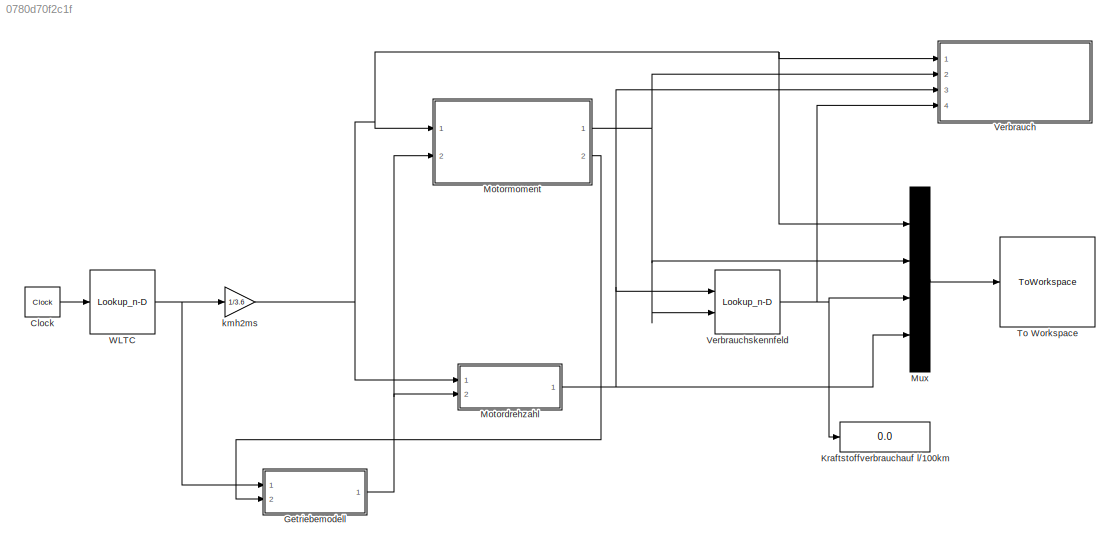
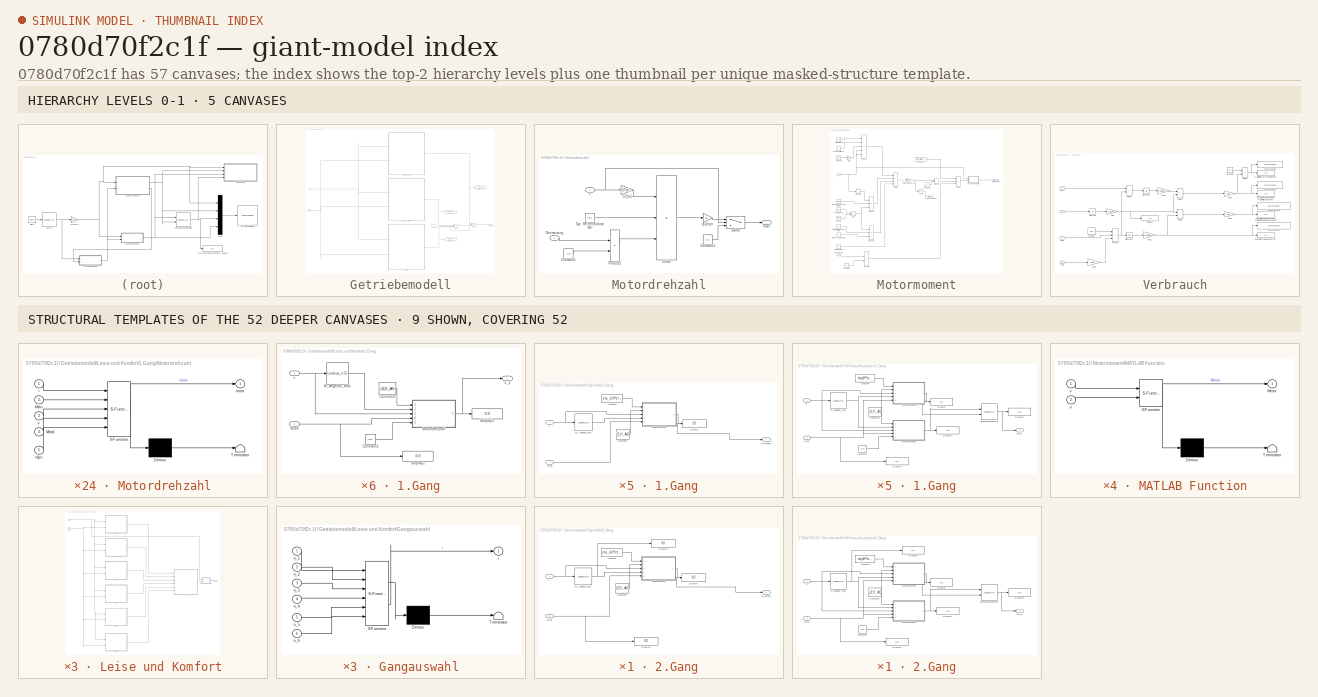
[diagram: thumbnail index - top-2 hierarchy levels (5 canvases) + 9 structural-template representatives of the remaining 52 canvases]
MODEL slx_0780d70f2c1f
KIND model
CONFIG AbsTol = auto
CONFIG EnableMultiTasking = off
CONFIG FixedStep = 1
CONFIG MaxStep = auto
CONFIG MinStep = auto
CONFIG RelTol = 1e-3
CONFIG SampleTimeConstraint = Unconstrained
CONFIG SolverName = FixedStepAuto
CONFIG StartTime = 0.0
CONFIG StopTime = 37
WORKSPACE source: mxarray member
WORKSPACE F_mod = 1
WORKSPACE b_kw = 8.5
BLOCK [Clock] Clock
  Decimation = 1
  DisplayTime = on
BLOCK [SubSystem] Getriebemodell
  Ports = [2, 1]
  RequestExecContextInheritance = off
BLOCK [Constant] Getriebemodell/Constant
  Value = 2
BLOCK [SubSystem] Getriebemodell/Leise und Komfort
  Ports = [2, 1]
  RequestExecContextInheritance = off
BLOCK [SubSystem] Getriebemodell/Leise und Komfort/1.Gang
  Ports = [2, 1]
  RequestExecContextInheritance = off
BLOCK [Constant] Getriebemodell/Leise und Komfort/1.Gang/Constant1
  Value = rdyn
BLOCK [Constant] Getriebemodell/Leise und Komfort/1.Gang/Constant2
  Value = i(1)*i_AG
BLOCK [Display] Getriebemodell/Leise und Komfort/1.Gang/Display1
  Decimation = 1
  Ports = [1]
BLOCK [Display] Getriebemodell/Leise und Komfort/1.Gang/Display2
  Decimation = 1
  Ports = [1]
BLOCK [Lookup_n-D] Getriebemodell/Leise und Komfort/1.Gang/M_Angebot_Max
  BreakpointsForDimension1 = v1_1
  InputPortMap = u0
  InternalRulePriority = Speed
  NumberOfTableDimensions = 1
  Ports = [1, 1]
  RndMeth = Simplest
  Table = M_1
BLOCK [SubSystem] Getriebemodell/Leise und Komfort/1.Gang/Motordrehzahl
  ErrorFcn = Stateflow.Translate.translate
  PermitHierarchicalResolution = ExplicitOnly
  Ports = [5, 1]
  RequestExecContextInheritance = off
  SFBlockType = MATLAB Function
  TreatAsAtomicUnit = on
BLOCK [Demux] Getriebemodell/Leise und Komfort/1.Gang/Motordrehzahl/ Demux 
  Outputs = 1
  Ports = [1, 1]
BLOCK [S-Function] Getriebemodell/Leise und Komfort/1.Gang/Motordrehzahl/ SFunction 
  EnableBusSupport = on
  FunctionName = sf_sfun
  PortCounts = [5 2]
  Ports = [5, 2]
  SFcnIsStateOwnerBlock = off
  SFunctionDeploymentMode = off
  Tag = Stateflow S-Function 30
BLOCK [Terminator] Getriebemodell/Leise und Komfort/1.Gang/Motordrehzahl/ Terminator 
BLOCK [Inport] Getriebemodell/Leise und Komfort/1.Gang/Motordrehzahl/Man
  Port = 2
BLOCK [Inport] Getriebemodell/Leise und Komfort/1.Gang/Motordrehzahl/Mrad
  Port = 4
BLOCK [Inport] Getriebemodell/Leise und Komfort/1.Gang/Motordrehzahl/i
BLOCK [Outport] Getriebemodell/Leise und Komfort/1.Gang/Motordrehzahl/nmot
BLOCK [Inport] Getriebemodell/Leise und Komfort/1.Gang/Motordrehzahl/rdyn
  Port = 5
BLOCK [Inport] Getriebemodell/Leise und Komfort/1.Gang/Motordrehzahl/v
  Port = 3
BLOCK [Inport] Getriebemodell/Leise und Komfort/1.Gang/Mrad
  Port = 2
BLOCK [Outport] Getriebemodell/Leise und Komfort/1.Gang/n_1
BLOCK [Inport] Getriebemodell/Leise und Komfort/1.Gang/v
BLOCK [SubSystem] Getriebemodell/Leise und Komfort/2.Gang
  Ports = [2, 1]
  RequestExecContextInheritance = off
BLOCK [Constant] Getriebemodell/Leise und Komfort/2.Gang/Constant1
  Value = rdyn
BLOCK [Constant] Getriebemodell/Leise und Komfort/2.Gang/Constant2
  Value = i(2)*i_AG
BLOCK [Display] Getriebemodell/Leise und Komfort/2.Gang/Display1
  Decimation = 1
  Ports = [1]
BLOCK [Display] Getriebemodell/Leise und Komfort/2.Gang/Display2
  Decimation = 1
  Ports = [1]
BLOCK [Lookup_n-D] Getriebemodell/Leise und Komfort/2.Gang/M_Angebot_Max
  BreakpointsForDimension1 = v1_2
  InputPortMap = u0
  InternalRulePriority = Speed
  NumberOfTableDimensions = 1
  Ports = [1, 1]
  RndMeth = Simplest
  Table = M_2
BLOCK [SubSystem] Getriebemodell/Leise und Komfort/2.Gang/Motordrehzahl
  ErrorFcn = Stateflow.Translate.translate
  PermitHierarchicalResolution = ExplicitOnly
  Ports = [5, 1]
  RequestExecContextInheritance = off
  SFBlockType = MATLAB Function
  TreatAsAtomicUnit = on
BLOCK [Demux] Getriebemodell/Leise und Komfort/2.Gang/Motordrehzahl/ Demux 
  Outputs = 1
  Ports = [1, 1]
BLOCK [S-Function] Getriebemodell/Leise und Komfort/2.Gang/Motordrehzahl/ SFunction 
  EnableBusSupport = on
  FunctionName = sf_sfun
  PortCounts = [5 2]
  Ports = [5, 2]
  SFcnIsStateOwnerBlock = off
  SFunctionDeploymentMode = off
  Tag = Stateflow S-Function 32
BLOCK [Terminator] Getriebemodell/Leise und Komfort/2.Gang/Motordrehzahl/ Terminator 
BLOCK [Inport] Getriebemodell/Leise und Komfort/2.Gang/Motordrehzahl/Man
  Port = 2
BLOCK [Inport] Getriebemodell/Leise und Komfort/2.Gang/Motordrehzahl/Mrad
  Port = 4
BLOCK [Inport] Getriebemodell/Leise und Komfort/2.Gang/Motordrehzahl/i
BLOCK [Outport] Getriebemodell/Leise und Komfort/2.Gang/Motordrehzahl/nmot
BLOCK [Inport] Getriebemodell/Leise und Komfort/2.Gang/Motordrehzahl/rdyn
  Port = 5
BLOCK [Inport] Getriebemodell/Leise und Komfort/2.Gang/Motordrehzahl/v
  Port = 3
BLOCK [Inport] Getriebemodell/Leise und Komfort/2.Gang/Mrad
  Port = 2
BLOCK [Outport] Getriebemodell/Leise und Komfort/2.Gang/n_2
BLOCK [Inport] Getriebemodell/Leise und Komfort/2.Gang/v
BLOCK [SubSystem] Getriebemodell/Leise und Komfort/3.Gang
  Ports = [2, 1]
  RequestExecContextInheritance = off
BLOCK [Constant] Getriebemodell/Leise und Komfort/3.Gang/Constant1
  Value = rdyn
BLOCK [Constant] Getriebemodell/Leise und Komfort/3.Gang/Constant2
  Value = i(3)*i_AG
BLOCK [Display] Getriebemodell/Leise und Komfort/3.Gang/Display1
  Decimation = 1
  Ports = [1]
BLOCK [Display] Getriebemodell/Leise und Komfort/3.Gang/Display2
  Decimation = 1
  Ports = [1]
BLOCK [Lookup_n-D] Getriebemodell/Leise und Komfort/3.Gang/M_Angebot_Max
  BreakpointsForDimension1 = v1_3
  InputPortMap = u0
  InternalRulePriority = Speed
  NumberOfTableDimensions = 1
  Ports = [1, 1]
  RndMeth = Simplest
  Table = M_3
BLOCK [SubSystem] Getriebemodell/Leise und Komfort/3.Gang/Motordrehzahl
  ErrorFcn = Stateflow.Translate.translate
  PermitHierarchicalResolution = ExplicitOnly
  Ports = [5, 1]
  RequestExecContextInheritance = off
  SFBlockType = MATLAB Function
  TreatAsAtomicUnit = on
BLOCK [Demux] Getriebemodell/Leise und Komfort/3.Gang/Motordrehzahl/ Demux 
  Outputs = 1
  Ports = [1, 1]
BLOCK [S-Function] Getriebemodell/Leise und Komfort/3.Gang/Motordrehzahl/ SFunction 
  EnableBusSupport = on
  FunctionName = sf_sfun
  PortCounts = [5 2]
  Ports = [5, 2]
  SFcnIsStateOwnerBlock = off
  SFunctionDeploymentMode = off
  Tag = Stateflow S-Function 34
BLOCK [Terminator] Getriebemodell/Leise und Komfort/3.Gang/Motordrehzahl/ Terminator 
BLOCK [Inport] Getriebemodell/Leise und Komfort/3.Gang/Motordrehzahl/Man
  Port = 2
BLOCK [Inport] Getriebemodell/Leise und Komfort/3.Gang/Motordrehzahl/Mrad
  Port = 4
BLOCK [Inport] Getriebemodell/Leise und Komfort/3.Gang/Motordrehzahl/i
BLOCK [Outport] Getriebemodell/Leise und Komfort/3.Gang/Motordrehzahl/nmot
BLOCK [Inport] Getriebemodell/Leise und Komfort/3.Gang/Motordrehzahl/rdyn
  Port = 5
BLOCK [Inport] Getriebemodell/Leise und Komfort/3.Gang/Motordrehzahl/v
  Port = 3
BLOCK [Inport] Getriebemodell/Leise und Komfort/3.Gang/Mrad
  Port = 2
BLOCK [Outport] Getriebemodell/Leise und Komfort/3.Gang/n_3
BLOCK [Inport] Getriebemodell/Leise und Komfort/3.Gang/v
BLOCK [SubSystem] Getriebemodell/Leise und Komfort/4.Gang
  Ports = [2, 1]
  RequestExecContextInheritance = off
BLOCK [Constant] Getriebemodell/Leise und Komfort/4.Gang/Constant1
  Value = rdyn
BLOCK [Constant] Getriebemodell/Leise und Komfort/4.Gang/Constant2
  Value = i(4)*i_AG
BLOCK [Display] Getriebemodell/Leise und Komfort/4.Gang/Display1
  Decimation = 1
  Ports = [1]
BLOCK [Display] Getriebemodell/Leise und Komfort/4.Gang/Display2
  Decimation = 1
  Ports = [1]
BLOCK [Lookup_n-D] Getriebemodell/Leise und Komfort/4.Gang/M_Angebot_Max
  BreakpointsForDimension1 = v1_4
  InputPortMap = u0
  InternalRulePriority = Speed
  NumberOfTableDimensions = 1
  Ports = [1, 1]
  RndMeth = Simplest
  Table = M_4
BLOCK [SubSystem] Getriebemodell/Leise und Komfort/4.Gang/Motordrehzahl
  ErrorFcn = Stateflow.Translate.translate
  PermitHierarchicalResolution = ExplicitOnly
  Ports = [5, 1]
  RequestExecContextInheritance = off
  SFBlockType = MATLAB Function
  TreatAsAtomicUnit = on
BLOCK [Demux] Getriebemodell/Leise und Komfort/4.Gang/Motordrehzahl/ Demux 
  Outputs = 1
  Ports = [1, 1]
BLOCK [S-Function] Getriebemodell/Leise und Komfort/4.Gang/Motordrehzahl/ SFunction 
  EnableBusSupport = on
  FunctionName = sf_sfun
  PortCounts = [5 2]
  Ports = [5, 2]
  SFcnIsStateOwnerBlock = off
  SFunctionDeploymentMode = off
  Tag = Stateflow S-Function 36
BLOCK [Terminator] Getriebemodell/Leise und Komfort/4.Gang/Motordrehzahl/ Terminator 
BLOCK [Inport] Getriebemodell/Leise und Komfort/4.Gang/Motordrehzahl/Man
  Port = 2
BLOCK [Inport] Getriebemodell/Leise und Komfort/4.Gang/Motordrehzahl/Mrad
  Port = 4
BLOCK [Inport] Getriebemodell/Leise und Komfort/4.Gang/Motordrehzahl/i
BLOCK [Outport] Getriebemodell/Leise und Komfort/4.Gang/Motordrehzahl/nmot
BLOCK [Inport] Getriebemodell/Leise und Komfort/4.Gang/Motordrehzahl/rdyn
  Port = 5
BLOCK [Inport] Getriebemodell/Leise und Komfort/4.Gang/Motordrehzahl/v
  Port = 3
BLOCK [Inport] Getriebemodell/Leise und Komfort/4.Gang/Mrad
  Port = 2
BLOCK [Outport] Getriebemodell/Leise und Komfort/4.Gang/n_4
BLOCK [Inport] Getriebemodell/Leise und Komfort/4.Gang/v
BLOCK [SubSystem] Getriebemodell/Leise und Komfort/5.Gang
  Ports = [2, 1]
  RequestExecContextInheritance = off
BLOCK [Constant] Getriebemodell/Leise und Komfort/5.Gang/Constant1
  Value = rdyn
BLOCK [Constant] Getriebemodell/Leise und Komfort/5.Gang/Constant2
  Value = i(5)*i_AG
BLOCK [Display] Getriebemodell/Leise und Komfort/5.Gang/Display1
  Decimation = 1
  Ports = [1]
BLOCK [Display] Getriebemodell/Leise und Komfort/5.Gang/Display2
  Decimation = 1
  Ports = [1]
BLOCK [Lookup_n-D] Getriebemodell/Leise und Komfort/5.Gang/M_Angebot_Max
  BreakpointsForDimension1 = v1_5
  InputPortMap = u0
  InternalRulePriority = Speed
  NumberOfTableDimensions = 1
  Ports = [1, 1]
  RndMeth = Simplest
  Table = M_5
BLOCK [SubSystem] Getriebemodell/Leise und Komfort/5.Gang/Motordrehzahl
  ErrorFcn = Stateflow.Translate.translate
  PermitHierarchicalResolution = ExplicitOnly
  Ports = [5, 1]
  RequestExecContextInheritance = off
  SFBlockType = MATLAB Function
  TreatAsAtomicUnit = on
BLOCK [Demux] Getriebemodell/Leise und Komfort/5.Gang/Motordrehzahl/ Demux 
  Outputs = 1
  Ports = [1, 1]
BLOCK [S-Function] Getriebemodell/Leise und Komfort/5.Gang/Motordrehzahl/ SFunction 
  EnableBusSupport = on
  FunctionName = sf_sfun
  PortCounts = [5 2]
  Ports = [5, 2]
  SFcnIsStateOwnerBlock = off
  SFunctionDeploymentMode = off
  Tag = Stateflow S-Function 38
BLOCK [Terminator] Getriebemodell/Leise und Komfort/5.Gang/Motordrehzahl/ Terminator 
BLOCK [Inport] Getriebemodell/Leise und Komfort/5.Gang/Motordrehzahl/Man
  Port = 2
BLOCK [Inport] Getriebemodell/Leise und Komfort/5.Gang/Motordrehzahl/Mrad
  Port = 4
BLOCK [Inport] Getriebemodell/Leise und Komfort/5.Gang/Motordrehzahl/i
BLOCK [Outport] Getriebemodell/Leise und Komfort/5.Gang/Motordrehzahl/nmot
BLOCK [Inport] Getriebemodell/Leise und Komfort/5.Gang/Motordrehzahl/rdyn
  Port = 5
BLOCK [Inport] Getriebemodell/Leise und Komfort/5.Gang/Motordrehzahl/v
  Port = 3
BLOCK [Inport] Getriebemodell/Leise und Komfort/5.Gang/Mrad
  Port = 2
BLOCK [Outport] Getriebemodell/Leise und Komfort/5.Gang/n_5
BLOCK [Inport] Getriebemodell/Leise und Komfort/5.Gang/v
BLOCK [SubSystem] Getriebemodell/Leise und Komfort/6.Gang
  Ports = [2, 1]
  RequestExecContextInheritance = off
BLOCK [Constant] Getriebemodell/Leise und Komfort/6.Gang/Constant1
  Value = rdyn
BLOCK [Constant] Getriebemodell/Leise und Komfort/6.Gang/Constant2
  Value = i(6)*i_AG
BLOCK [Display] Getriebemodell/Leise und Komfort/6.Gang/Display1
  Decimation = 1
  Ports = [1]
BLOCK [Display] Getriebemodell/Leise und Komfort/6.Gang/Display2
  Decimation = 1
  Ports = [1]
BLOCK [Lookup_n-D] Getriebemodell/Leise und Komfort/6.Gang/M_Angebot_Max
  BreakpointsForDimension1 = v1_6
  InputPortMap = u0
  InternalRulePriority = Speed
  NumberOfTableDimensions = 1
  Ports = [1, 1]
  RndMeth = Simplest
  Table = M_6
BLOCK [SubSystem] Getriebemodell/Leise und Komfort/6.Gang/Motordrehzahl
  ErrorFcn = Stateflow.Translate.translate
  PermitHierarchicalResolution = ExplicitOnly
  Ports = [5, 1]
  RequestExecContextInheritance = off
  SFBlockType = MATLAB Function
  TreatAsAtomicUnit = on
BLOCK [Demux] Getriebemodell/Leise und Komfort/6.Gang/Motordrehzahl/ Demux 
  Outputs = 1
  Ports = [1, 1]
BLOCK [S-Function] Getriebemodell/Leise und Komfort/6.Gang/Motordrehzahl/ SFunction 
  EnableBusSupport = on
  FunctionName = sf_sfun
  PortCounts = [5 2]
  Ports = [5, 2]
  SFcnIsStateOwnerBlock = off
  SFunctionDeploymentMode = off
  Tag = Stateflow S-Function 40
BLOCK [Terminator] Getriebemodell/Leise und Komfort/6.Gang/Motordrehzahl/ Terminator 
BLOCK [Inport] Getriebemodell/Leise und Komfort/6.Gang/Motordrehzahl/Man
  Port = 2
BLOCK [Inport] Getriebemodell/Leise und Komfort/6.Gang/Motordrehzahl/Mrad
  Port = 4
BLOCK [Inport] Getriebemodell/Leise und Komfort/6.Gang/Motordrehzahl/i
BLOCK [Outport] Getriebemodell/Leise und Komfort/6.Gang/Motordrehzahl/nmot
BLOCK [Inport] Getriebemodell/Leise und Komfort/6.Gang/Motordrehzahl/rdyn
  Port = 5
BLOCK [Inport] Getriebemodell/Leise und Komfort/6.Gang/Motordrehzahl/v
  Port = 3
BLOCK [Inport] Getriebemodell/Leise und Komfort/6.Gang/Mrad
  Port = 2
BLOCK [Outport] Getriebemodell/Leise und Komfort/6.Gang/n_6
BLOCK [Inport] Getriebemodell/Leise und Komfort/6.Gang/v
BLOCK [SubSystem] Getriebemodell/Leise und Komfort/Gangauswahl
  ErrorFcn = Stateflow.Translate.translate
  PermitHierarchicalResolution = ExplicitOnly
  Ports = [6, 1]
  RequestExecContextInheritance = off
  SFBlockType = MATLAB Function
  TreatAsAtomicUnit = on
BLOCK [Demux] Getriebemodell/Leise und Komfort/Gangauswahl/ Demux 
  Outputs = 1
  Ports = [1, 1]
BLOCK [S-Function] Getriebemodell/Leise und Komfort/Gangauswahl/ SFunction 
  EnableBusSupport = on
  FunctionName = sf_sfun
  PortCounts = [6 2]
  Ports = [6, 2]
  SFcnIsStateOwnerBlock = off
  SFunctionDeploymentMode = off
  Tag = Stateflow S-Function 42
BLOCK [Terminator] Getriebemodell/Leise und Komfort/Gangauswahl/ Terminator 
BLOCK [Outport] Getriebemodell/Leise und Komfort/Gangauswahl/i
BLOCK [Inport] Getriebemodell/Leise und Komfort/Gangauswahl/n_1
BLOCK [Inport] Getriebemodell/Leise und Komfort/Gangauswahl/n_2
  Port = 2
BLOCK [Inport] Getriebemodell/Leise und Komfort/Gangauswahl/n_3
  Port = 3
BLOCK [Inport] Getriebemodell/Leise und Komfort/Gangauswahl/n_4
  Port = 4
BLOCK [Inport] Getriebemodell/Leise und Komfort/Gangauswahl/n_5
  Port = 5
BLOCK [Inport] Getriebemodell/Leise und Komfort/Gangauswahl/n_6
  Port = 6
BLOCK [SubSystem] Getriebemodell/Leise und Komfort/MATLAB Function
  ErrorFcn = Stateflow.Translate.translate
  PermitHierarchicalResolution = ExplicitOnly
  Ports = [2, 1]
  RequestExecContextInheritance = off
  SFBlockType = MATLAB Function
  TreatAsAtomicUnit = on
BLOCK [Demux] Getriebemodell/Leise und Komfort/MATLAB Function/ Demux 
  Outputs = 1
  Ports = [1, 1]
BLOCK [S-Function] Getriebemodell/Leise und Komfort/MATLAB Function/ SFunction 
  EnableBusSupport = on
  FunctionName = sf_sfun
  PortCounts = [2 2]
  Ports = [2, 2]
  SFcnIsStateOwnerBlock = off
  SFunctionDeploymentMode = off
  Tag = Stateflow S-Function 43
BLOCK [Terminator] Getriebemodell/Leise und Komfort/MATLAB Function/ Terminator 
BLOCK [Outport] Getriebemodell/Leise und Komfort/MATLAB Function/i
BLOCK [Inport] Getriebemodell/Leise und Komfort/MATLAB Function/u
  Port = 2
BLOCK [Inport] Getriebemodell/Leise und Komfort/MATLAB Function/v
BLOCK [Inport] Getriebemodell/Leise und Komfort/Mrad
  Port = 2
BLOCK [Outport] Getriebemodell/Leise und Komfort/i
BLOCK [Inport] Getriebemodell/Leise und Komfort/v
BLOCK [Inport] Getriebemodell/Mrad
  Port = 2
BLOCK [SubSystem] Getriebemodell/Sportlich
  Ports = [2, 1]
  RequestExecContextInheritance = off
BLOCK [SubSystem] Getriebemodell/Sportlich/1.Gang
  Ports = [2, 1]
  RequestExecContextInheritance = off
BLOCK [Constant] Getriebemodell/Sportlich/1.Gang/Constant
  Value = eta_diff*eta_getr
BLOCK [Constant] Getriebemodell/Sportlich/1.Gang/Constant2
  Value = i(1)*i_AG
BLOCK [Display] Getriebemodell/Sportlich/1.Gang/Display
  Decimation = 1
  Ports = [1]
BLOCK [Lookup_n-D] Getriebemodell/Sportlich/1.Gang/M_Angebot_Max
  BreakpointsForDimension1 = v1_1
  InputPortMap = u0
  InternalRulePriority = Speed
  NumberOfTableDimensions = 1
  Ports = [1, 1]
  RndMeth = Simplest
  Table = M_1
BLOCK [Outport] Getriebemodell/Sportlich/1.Gang/M_Gang_1
BLOCK [SubSystem] Getriebemodell/Sportlich/1.Gang/Motormoment
  ErrorFcn = Stateflow.Translate.translate
  PermitHierarchicalResolution = ExplicitOnly
  Ports = [5, 1]
  RequestExecContextInheritance = off
  SFBlockType = MATLAB Function
  TreatAsAtomicUnit = on
BLOCK [Demux] Getriebemodell/Sportlich/1.Gang/Motormoment/ Demux 
  Outputs = 1
  Ports = [1, 1]
BLOCK [S-Function] Getriebemodell/Sportlich/1.Gang/Motormoment/ SFunction 
  EnableBusSupport = on
  FunctionName = sf_sfun
  PortCounts = [5 2]
  Ports = [5, 2]
  SFcnIsStateOwnerBlock = off
  SFunctionDeploymentMode = off
  Tag = Stateflow S-Function 17
BLOCK [Terminator] Getriebemodell/Sportlich/1.Gang/Motormoment/ Terminator 
BLOCK [Inport] Getriebemodell/Sportlich/1.Gang/Motormoment/Man
  Port = 4
BLOCK [Outport] Getriebemodell/Sportlich/1.Gang/Motormoment/Mmot
BLOCK [Inport] Getriebemodell/Sportlich/1.Gang/Motormoment/Mrad
  Port = 5
BLOCK [Inport] Getriebemodell/Sportlich/1.Gang/Motormoment/eta
BLOCK [Inport] Getriebemodell/Sportlich/1.Gang/Motormoment/i
  Port = 2
BLOCK [Inport] Getriebemodell/Sportlich/1.Gang/Motormoment/v
  Port = 3
BLOCK [Inport] Getriebemodell/Sportlich/1.Gang/Mrad
  Port = 2
BLOCK [Inport] Getriebemodell/Sportlich/1.Gang/v
BLOCK [SubSystem] Getriebemodell/Sportlich/2.Gang
  Ports = [2, 1]
  RequestExecContextInheritance = off
BLOCK [Constant] Getriebemodell/Sportlich/2.Gang/Constant
  Value = eta_diff*eta_getr
BLOCK [Constant] Getriebemodell/Sportlich/2.Gang/Constant2
  Value = i(2)*i_AG
BLOCK [Display] Getriebemodell/Sportlich/2.Gang/Display
  Decimation = 1
  Ports = [1]
BLOCK [Display] Getriebemodell/Sportlich/2.Gang/Display2
  Decimation = 1
  Ports = [1]
BLOCK [Display] Getriebemodell/Sportlich/2.Gang/Display3
  Decimation = 1
  Ports = [1]
BLOCK [Lookup_n-D] Getriebemodell/Sportlich/2.Gang/M_Angebot_Max
  BreakpointsForDimension1 = v1_2
  InputPortMap = u0
  InternalRulePriority = Speed
  NumberOfTableDimensions = 1
  Ports = [1, 1]
  RndMeth = Simplest
  Table = M_2
BLOCK [Outport] Getriebemodell/Sportlich/2.Gang/M_Gang_2
BLOCK [SubSystem] Getriebemodell/Sportlich/2.Gang/Motormoment
  ErrorFcn = Stateflow.Translate.translate
  PermitHierarchicalResolution = ExplicitOnly
  Ports = [5, 1]
  RequestExecContextInheritance = off
  SFBlockType = MATLAB Function
  TreatAsAtomicUnit = on
BLOCK [Demux] Getriebemodell/Sportlich/2.Gang/Motormoment/ Demux 
  Outputs = 1
  Ports = [1, 1]
BLOCK [S-Function] Getriebemodell/Sportlich/2.Gang/Motormoment/ SFunction 
  EnableBusSupport = on
  FunctionName = sf_sfun
  PortCounts = [5 2]
  Ports = [5, 2]
  SFcnIsStateOwnerBlock = off
  SFunctionDeploymentMode = off
  Tag = Stateflow S-Function 19
BLOCK [Terminator] Getriebemodell/Sportlich/2.Gang/Motormoment/ Terminator 
BLOCK [Inport] Getriebemodell/Sportlich/2.Gang/Motormoment/Man
  Port = 4
BLOCK [Outport] Getriebemodell/Sportlich/2.Gang/Motormoment/Mmot
BLOCK [Inport] Getriebemodell/Sportlich/2.Gang/Motormoment/Mrad
  Port = 5
BLOCK [Inport] Getriebemodell/Sportlich/2.Gang/Motormoment/eta
BLOCK [Inport] Getriebemodell/Sportlich/2.Gang/Motormoment/i
  Port = 2
BLOCK [Inport] Getriebemodell/Sportlich/2.Gang/Motormoment/v
  Port = 3
BLOCK [Inport] Getriebemodell/Sportlich/2.Gang/Mrad
  Port = 2
BLOCK [Inport] Getriebemodell/Sportlich/2.Gang/v
BLOCK [SubSystem] Getriebemodell/Sportlich/3.Gang
  Ports = [2, 1]
  RequestExecContextInheritance = off
BLOCK [Constant] Getriebemodell/Sportlich/3.Gang/Constant
  Value = eta_diff*eta_getr
BLOCK [Constant] Getriebemodell/Sportlich/3.Gang/Constant2
  Value = i(3)*i_AG
BLOCK [Display] Getriebemodell/Sportlich/3.Gang/Display
  Decimation = 1
  Ports = [1]
BLOCK [Lookup_n-D] Getriebemodell/Sportlich/3.Gang/M_Angebot_Max
  BreakpointsForDimension1 = v1_3
  InputPortMap = u0
  InternalRulePriority = Speed
  NumberOfTableDimensions = 1
  Ports = [1, 1]
  RndMeth = Simplest
  Table = M_3
BLOCK [Outport] Getriebemodell/Sportlich/3.Gang/M_Gang_3
BLOCK [SubSystem] Getriebemodell/Sportlich/3.Gang/Motormoment
  ErrorFcn = Stateflow.Translate.translate
  PermitHierarchicalResolution = ExplicitOnly
  Ports = [5, 1]
  RequestExecContextInheritance = off
  SFBlockType = MATLAB Function
  TreatAsAtomicUnit = on
BLOCK [Demux] Getriebemodell/Sportlich/3.Gang/Motormoment/ Demux 
  Outputs = 1
  Ports = [1, 1]
BLOCK [S-Function] Getriebemodell/Sportlich/3.Gang/Motormoment/ SFunction 
  EnableBusSupport = on
  FunctionName = sf_sfun
  PortCounts = [5 2]
  Ports = [5, 2]
  SFcnIsStateOwnerBlock = off
  SFunctionDeploymentMode = off
  Tag = Stateflow S-Function 21
BLOCK [Terminator] Getriebemodell/Sportlich/3.Gang/Motormoment/ Terminator 
BLOCK [Inport] Getriebemodell/Sportlich/3.Gang/Motormoment/Man
  Port = 4
BLOCK [Outport] Getriebemodell/Sportlich/3.Gang/Motormoment/Mmot
BLOCK [Inport] Getriebemodell/Sportlich/3.Gang/Motormoment/Mrad
  Port = 5
BLOCK [Inport] Getriebemodell/Sportlich/3.Gang/Motormoment/eta
BLOCK [Inport] Getriebemodell/Sportlich/3.Gang/Motormoment/i
  Port = 2
BLOCK [Inport] Getriebemodell/Sportlich/3.Gang/Motormoment/v
  Port = 3
BLOCK [Inport] Getriebemodell/Sportlich/3.Gang/Mrad
  Port = 2
BLOCK [Inport] Getriebemodell/Sportlich/3.Gang/v
BLOCK [SubSystem] Getriebemodell/Sportlich/4.Gang
  Ports = [2, 1]
  RequestExecContextInheritance = off
BLOCK [Constant] Getriebemodell/Sportlich/4.Gang/Constant
  Value = eta_diff*eta_getr
BLOCK [Constant] Getriebemodell/Sportlich/4.Gang/Constant2
  Value = i(4)*i_AG
BLOCK [Display] Getriebemodell/Sportlich/4.Gang/Display
  Decimation = 1
  Ports = [1]
BLOCK [Lookup_n-D] Getriebemodell/Sportlich/4.Gang/M_Angebot_Max
  BreakpointsForDimension1 = v1_4
  InputPortMap = u0
  InternalRulePriority = Speed
  NumberOfTableDimensions = 1
  Ports = [1, 1]
  RndMeth = Simplest
  Table = M_4
BLOCK [Outport] Getriebemodell/Sportlich/4.Gang/M_Gang_4
BLOCK [SubSystem] Getriebemodell/Sportlich/4.Gang/Motormoment
  ErrorFcn = Stateflow.Translate.translate
  PermitHierarchicalResolution = ExplicitOnly
  Ports = [5, 1]
  RequestExecContextInheritance = off
  SFBlockType = MATLAB Function
  TreatAsAtomicUnit = on
BLOCK [Demux] Getriebemodell/Sportlich/4.Gang/Motormoment/ Demux 
  Outputs = 1
  Ports = [1, 1]
BLOCK [S-Function] Getriebemodell/Sportlich/4.Gang/Motormoment/ SFunction 
  EnableBusSupport = on
  FunctionName = sf_sfun
  PortCounts = [5 2]
  Ports = [5, 2]
  SFcnIsStateOwnerBlock = off
  SFunctionDeploymentMode = off
  Tag = Stateflow S-Function 23
BLOCK [Terminator] Getriebemodell/Sportlich/4.Gang/Motormoment/ Terminator 
BLOCK [Inport] Getriebemodell/Sportlich/4.Gang/Motormoment/Man
  Port = 4
BLOCK [Outport] Getriebemodell/Sportlich/4.Gang/Motormoment/Mmot
BLOCK [Inport] Getriebemodell/Sportlich/4.Gang/Motormoment/Mrad
  Port = 5
BLOCK [Inport] Getriebemodell/Sportlich/4.Gang/Motormoment/eta
BLOCK [Inport] Getriebemodell/Sportlich/4.Gang/Motormoment/i
  Port = 2
BLOCK [Inport] Getriebemodell/Sportlich/4.Gang/Motormoment/v
  Port = 3
BLOCK [Inport] Getriebemodell/Sportlich/4.Gang/Mrad
  Port = 2
BLOCK [Inport] Getriebemodell/Sportlich/4.Gang/v
BLOCK [SubSystem] Getriebemodell/Sportlich/5.Gang
  Ports = [2, 1]
  RequestExecContextInheritance = off
BLOCK [Constant] Getriebemodell/Sportlich/5.Gang/Constant
  Value = eta_diff*eta_getr
BLOCK [Constant] Getriebemodell/Sportlich/5.Gang/Constant2
  Value = i(5)*i_AG
BLOCK [Display] Getriebemodell/Sportlich/5.Gang/Display
  Decimation = 1
  Ports = [1]
BLOCK [Lookup_n-D] Getriebemodell/Sportlich/5.Gang/M_Angebot_Max
  BreakpointsForDimension1 = v1_5
  InputPortMap = u0
  InternalRulePriority = Speed
  NumberOfTableDimensions = 1
  Ports = [1, 1]
  RndMeth = Simplest
  Table = M_5
BLOCK [Outport] Getriebemodell/Sportlich/5.Gang/M_Gang_5
BLOCK [SubSystem] Getriebemodell/Sportlich/5.Gang/Motormoment
  ErrorFcn = Stateflow.Translate.translate
  PermitHierarchicalResolution = ExplicitOnly
  Ports = [5, 1]
  RequestExecContextInheritance = off
  SFBlockType = MATLAB Function
  TreatAsAtomicUnit = on
BLOCK [Demux] Getriebemodell/Sportlich/5.Gang/Motormoment/ Demux 
  Outputs = 1
  Ports = [1, 1]
BLOCK [S-Function] Getriebemodell/Sportlich/5.Gang/Motormoment/ SFunction 
  EnableBusSupport = on
  FunctionName = sf_sfun
  PortCounts = [5 2]
  Ports = [5, 2]
  SFcnIsStateOwnerBlock = off
  SFunctionDeploymentMode = off
  Tag = Stateflow S-Function 25
BLOCK [Terminator] Getriebemodell/Sportlich/5.Gang/Motormoment/ Terminator 
BLOCK [Inport] Getriebemodell/Sportlich/5.Gang/Motormoment/Man
  Port = 4
BLOCK [Outport] Getriebemodell/Sportlich/5.Gang/Motormoment/Mmot
BLOCK [Inport] Getriebemodell/Sportlich/5.Gang/Motormoment/Mrad
  Port = 5
BLOCK [Inport] Getriebemodell/Sportlich/5.Gang/Motormoment/eta
BLOCK [Inport] Getriebemodell/Sportlich/5.Gang/Motormoment/i
  Port = 2
BLOCK [Inport] Getriebemodell/Sportlich/5.Gang/Motormoment/v
  Port = 3
BLOCK [Inport] Getriebemodell/Sportlich/5.Gang/Mrad
  Port = 2
BLOCK [Inport] Getriebemodell/Sportlich/5.Gang/v
BLOCK [SubSystem] Getriebemodell/Sportlich/6.Gang
  Ports = [2, 1]
  RequestExecContextInheritance = off
BLOCK [Constant] Getriebemodell/Sportlich/6.Gang/Constant
  Value = eta_diff*eta_getr
BLOCK [Constant] Getriebemodell/Sportlich/6.Gang/Constant2
  Value = i(6)*i_AG
BLOCK [Display] Getriebemodell/Sportlich/6.Gang/Display
  Decimation = 1
  Ports = [1]
BLOCK [Lookup_n-D] Getriebemodell/Sportlich/6.Gang/M_Angebot_Max
  BreakpointsForDimension1 = v1_6
  InputPortMap = u0
  InternalRulePriority = Speed
  NumberOfTableDimensions = 1
  Ports = [1, 1]
  RndMeth = Simplest
  Table = M_6
BLOCK [Outport] Getriebemodell/Sportlich/6.Gang/M_Gang_6
BLOCK [SubSystem] Getriebemodell/Sportlich/6.Gang/Motormoment
  ErrorFcn = Stateflow.Translate.translate
  PermitHierarchicalResolution = ExplicitOnly
  Ports = [5, 1]
  RequestExecContextInheritance = off
  SFBlockType = MATLAB Function
  TreatAsAtomicUnit = on
BLOCK [Demux] Getriebemodell/Sportlich/6.Gang/Motormoment/ Demux 
  Outputs = 1
  Ports = [1, 1]
BLOCK [S-Function] Getriebemodell/Sportlich/6.Gang/Motormoment/ SFunction 
  EnableBusSupport = on
  FunctionName = sf_sfun
  PortCounts = [5 2]
  Ports = [5, 2]
  SFcnIsStateOwnerBlock = off
  SFunctionDeploymentMode = off
  Tag = Stateflow S-Function 27
BLOCK [Terminator] Getriebemodell/Sportlich/6.Gang/Motormoment/ Terminator 
BLOCK [Inport] Getriebemodell/Sportlich/6.Gang/Motormoment/Man
  Port = 4
BLOCK [Outport] Getriebemodell/Sportlich/6.Gang/Motormoment/Mmot
BLOCK [Inport] Getriebemodell/Sportlich/6.Gang/Motormoment/Mrad
  Port = 5
BLOCK [Inport] Getriebemodell/Sportlich/6.Gang/Motormoment/eta
BLOCK [Inport] Getriebemodell/Sportlich/6.Gang/Motormoment/i
  Port = 2
BLOCK [Inport] Getriebemodell/Sportlich/6.Gang/Motormoment/v
  Port = 3
BLOCK [Inport] Getriebemodell/Sportlich/6.Gang/Mrad
  Port = 2
BLOCK [Inport] Getriebemodell/Sportlich/6.Gang/v
BLOCK [SubSystem] Getriebemodell/Sportlich/Gangauswahl
  ErrorFcn = Stateflow.Translate.translate
  PermitHierarchicalResolution = ExplicitOnly
  Ports = [6, 1]
  RequestExecContextInheritance = off
  SFBlockType = MATLAB Function
  TreatAsAtomicUnit = on
BLOCK [Demux] Getriebemodell/Sportlich/Gangauswahl/ Demux 
  Outputs = 1
  Ports = [1, 1]
BLOCK [S-Function] Getriebemodell/Sportlich/Gangauswahl/ SFunction 
  EnableBusSupport = on
  FunctionName = sf_sfun
  PortCounts = [6 2]
  Ports = [6, 2]
  SFcnIsStateOwnerBlock = off
  SFunctionDeploymentMode = off
  Tag = Stateflow S-Function 28
BLOCK [Terminator] Getriebemodell/Sportlich/Gangauswahl/ Terminator 
BLOCK [Inport] Getriebemodell/Sportlich/Gangauswahl/M_Gang_1
BLOCK [Inport] Getriebemodell/Sportlich/Gangauswahl/M_Gang_2
  Port = 2
BLOCK [Inport] Getriebemodell/Sportlich/Gangauswahl/M_Gang_3
  Port = 3
BLOCK [Inport] Getriebemodell/Sportlich/Gangauswahl/M_Gang_4
  Port = 4
BLOCK [Inport] Getriebemodell/Sportlich/Gangauswahl/M_Gang_5
  Port = 5
BLOCK [Inport] Getriebemodell/Sportlich/Gangauswahl/M_Gang_6
  Port = 6
BLOCK [Outport] Getriebemodell/Sportlich/Gangauswahl/i
BLOCK [SubSystem] Getriebemodell/Sportlich/MATLAB Function
  ErrorFcn = Stateflow.Translate.translate
  PermitHierarchicalResolution = ExplicitOnly
  Ports = [2, 1]
  RequestExecContextInheritance = off
  SFBlockType = MATLAB Function
  TreatAsAtomicUnit = on
BLOCK [Demux] Getriebemodell/Sportlich/MATLAB Function/ Demux 
  Outputs = 1
  Ports = [1, 1]
BLOCK [S-Function] Getriebemodell/Sportlich/MATLAB Function/ SFunction 
  EnableBusSupport = on
  FunctionName = sf_sfun
  PortCounts = [2 2]
  Ports = [2, 2]
  SFcnIsStateOwnerBlock = off
  SFunctionDeploymentMode = off
  Tag = Stateflow S-Function 29
BLOCK [Terminator] Getriebemodell/Sportlich/MATLAB Function/ Terminator 
BLOCK [Outport] Getriebemodell/Sportlich/MATLAB Function/i
BLOCK [Inport] Getriebemodell/Sportlich/MATLAB Function/u
  Port = 2
BLOCK [Inport] Getriebemodell/Sportlich/MATLAB Function/v
BLOCK [Inport] Getriebemodell/Sportlich/Mrad
  Port = 2
BLOCK [Outport] Getriebemodell/Sportlich/i
BLOCK [Inport] Getriebemodell/Sportlich/v
BLOCK [Switch] Getriebemodell/Switch
  Criteria = u2 > Threshold
  InputSameDT = off
  SaturateOnIntegerOverflow = off
BLOCK [Switch] Getriebemodell/Switch1
  Criteria = u2 > Threshold
  InputSameDT = off
  SaturateOnIntegerOverflow = off
  Threshold = 1
BLOCK [ToWorkspace] Getriebemodell/To Workspace
  FixptAsFi = on
  MaxDataPoints = inf
  Ports = [1]
  SampleTime = -1
  SaveFormat = Timeseries
  VariableName = sport
BLOCK [ToWorkspace] Getriebemodell/To Workspace1
  FixptAsFi = on
  MaxDataPoints = inf
  Ports = [1]
  SampleTime = -1
  SaveFormat = Timeseries
  VariableName = verbrauch
BLOCK [ToWorkspace] Getriebemodell/To Workspace4
  FixptAsFi = on
  MaxDataPoints = inf
  Ports = [1]
  SampleTime = -1
  SaveFormat = Timeseries
  VariableName = Komfort
BLOCK [SubSystem] Getriebemodell/Verbrauchoptimiert
  Ports = [2, 1]
  RequestExecContextInheritance = off
BLOCK [SubSystem] Getriebemodell/Verbrauchoptimiert/1.Gang
  Ports = [2, 1]
  RequestExecContextInheritance = off
BLOCK [Constant] Getriebemodell/Verbrauchoptimiert/1.Gang/Constant
  Value = eta_diff*eta_getr
BLOCK [Constant] Getriebemodell/Verbrauchoptimiert/1.Gang/Constant1
  Value = rdyn
BLOCK [Constant] Getriebemodell/Verbrauchoptimiert/1.Gang/Constant2
  Value = i(1)*i_AG
BLOCK [Display] Getriebemodell/Verbrauchoptimiert/1.Gang/Display
  Decimation = 1
  Ports = [1]
BLOCK [Display] Getriebemodell/Verbrauchoptimiert/1.Gang/Display1
  Decimation = 1
  Ports = [1]
BLOCK [Display] Getriebemodell/Verbrauchoptimiert/1.Gang/Display2
  Decimation = 1
  Ports = [1]
BLOCK [Display] Getriebemodell/Verbrauchoptimiert/1.Gang/Display4
  Decimation = 1
  Ports = [1]
BLOCK [Lookup_n-D] Getriebemodell/Verbrauchoptimiert/1.Gang/M_Angebot_Max
  BreakpointsForDimension1 = v1_1
  InputPortMap = u0
  InternalRulePriority = Speed
  NumberOfTableDimensions = 1
  Ports = [1, 1]
  RndMeth = Simplest
  Table = M_1
BLOCK [SubSystem] Getriebemodell/Verbrauchoptimiert/1.Gang/Motordrehzahl
  ErrorFcn = Stateflow.Translate.translate
  PermitHierarchicalResolution = ExplicitOnly
  Ports = [5, 1]
  RequestExecContextInheritance = off
  SFBlockType = MATLAB Function
  TreatAsAtomicUnit = on
BLOCK [Demux] Getriebemodell/Verbrauchoptimiert/1.Gang/Motordrehzahl/ Demux 
  Outputs = 1
  Ports = [1, 1]
BLOCK [S-Function] Getriebemodell/Verbrauchoptimiert/1.Gang/Motordrehzahl/ SFunction 
  EnableBusSupport = on
  FunctionName = sf_sfun
  PortCounts = [5 2]
  Ports = [5, 2]
  SFcnIsStateOwnerBlock = off
  SFunctionDeploymentMode = off
  Tag = Stateflow S-Function 1
BLOCK [Terminator] Getriebemodell/Verbrauchoptimiert/1.Gang/Motordrehzahl/ Terminator 
BLOCK [Inport] Getriebemodell/Verbrauchoptimiert/1.Gang/Motordrehzahl/Man
  Port = 2
BLOCK [Inport] Getriebemodell/Verbrauchoptimiert/1.Gang/Motordrehzahl/Mrad
  Port = 4
BLOCK [Inport] Getriebemodell/Verbrauchoptimiert/1.Gang/Motordrehzahl/i
BLOCK [Outport] Getriebemodell/Verbrauchoptimiert/1.Gang/Motordrehzahl/nmot
BLOCK [Inport] Getriebemodell/Verbrauchoptimiert/1.Gang/Motordrehzahl/rdyn
  Port = 5
BLOCK [Inport] Getriebemodell/Verbrauchoptimiert/1.Gang/Motordrehzahl/v
  Port = 3
BLOCK [SubSystem] Getriebemodell/Verbrauchoptimiert/1.Gang/Motormoment
  ErrorFcn = Stateflow.Translate.translate
  PermitHierarchicalResolution = ExplicitOnly
  Ports = [5, 1]
  RequestExecContextInheritance = off
  SFBlockType = MATLAB Function
  TreatAsAtomicUnit = on
BLOCK [Demux] Getriebemodell/Verbrauchoptimiert/1.Gang/Motormoment/ Demux 
  Outputs = 1
  Ports = [1, 1]
BLOCK [S-Function] Getriebemodell/Verbrauchoptimiert/1.Gang/Motormoment/ SFunction 
  EnableBusSupport = on
  FunctionName = sf_sfun
  PortCounts = [5 2]
  Ports = [5, 2]
  SFcnIsStateOwnerBlock = off
  SFunctionDeploymentMode = off
  Tag = Stateflow S-Function 2
BLOCK [Terminator] Getriebemodell/Verbrauchoptimiert/1.Gang/Motormoment/ Terminator 
BLOCK [Inport] Getriebemodell/Verbrauchoptimiert/1.Gang/Motormoment/Man
  Port = 4
BLOCK [Outport] Getriebemodell/Verbrauchoptimiert/1.Gang/Motormoment/Mmot
BLOCK [Inport] Getriebemodell/Verbrauchoptimiert/1.Gang/Motormoment/Mrad
  Port = 5
BLOCK [Inport] Getriebemodell/Verbrauchoptimiert/1.Gang/Motormoment/eta
BLOCK [Inport] Getriebemodell/Verbrauchoptimiert/1.Gang/Motormoment/i
  Port = 2
BLOCK [Inport] Getriebemodell/Verbrauchoptimiert/1.Gang/Motormoment/v
  Port = 3
BLOCK [Inport] Getriebemodell/Verbrauchoptimiert/1.Gang/Mrad
  Port = 2
BLOCK [Lookup_n-D] Getriebemodell/Verbrauchoptimiert/1.Gang/Verbrauchskennfeld
  BreakpointsForDimension1 = VKM.n_axis(:,1)
  BreakpointsForDimension2 = VKM.M_axis(1,:)
  ExtrapMethod = Clip
  InputPortMap = u0,u1
  InternalRulePriority = Speed
  Ports = [2, 1]
  RndMeth = Simplest
  Table = eta
BLOCK [Outport] Getriebemodell/Verbrauchoptimiert/1.Gang/eta_1
BLOCK [Inport] Getriebemodell/Verbrauchoptimiert/1.Gang/v
BLOCK [SubSystem] Getriebemodell/Verbrauchoptimiert/2.Gang
  Ports = [2, 1]
  RequestExecContextInheritance = off
BLOCK [Constant] Getriebemodell/Verbrauchoptimiert/2.Gang/Constant
  Value = eta_diff*eta_getr
BLOCK [Constant] Getriebemodell/Verbrauchoptimiert/2.Gang/Constant1
  Value = rdyn
BLOCK [Constant] Getriebemodell/Verbrauchoptimiert/2.Gang/Constant2
  Value = i(2)*i_AG
BLOCK [Display] Getriebemodell/Verbrauchoptimiert/2.Gang/Display
  Decimation = 1
  Ports = [1]
BLOCK [Display] Getriebemodell/Verbrauchoptimiert/2.Gang/Display1
  Decimation = 1
  Ports = [1]
BLOCK [Display] Getriebemodell/Verbrauchoptimiert/2.Gang/Display2
  Decimation = 1
  Ports = [1]
BLOCK [Display] Getriebemodell/Verbrauchoptimiert/2.Gang/Display3
  Decimation = 1
  Ports = [1]
BLOCK [Display] Getriebemodell/Verbrauchoptimiert/2.Gang/Display4
  Decimation = 1
  Ports = [1]
BLOCK [Lookup_n-D] Getriebemodell/Verbrauchoptimiert/2.Gang/M_Angebot_Max
  BreakpointsForDimension1 = v1_2
  InputPortMap = u0
  InternalRulePriority = Speed
  NumberOfTableDimensions = 1
  Ports = [1, 1]
  RndMeth = Simplest
  Table = M_2
BLOCK [SubSystem] Getriebemodell/Verbrauchoptimiert/2.Gang/Motordrehzahl
  ErrorFcn = Stateflow.Translate.translate
  PermitHierarchicalResolution = ExplicitOnly
  Ports = [5, 1]
  RequestExecContextInheritance = off
  SFBlockType = MATLAB Function
  TreatAsAtomicUnit = on
BLOCK [Demux] Getriebemodell/Verbrauchoptimiert/2.Gang/Motordrehzahl/ Demux 
  Outputs = 1
  Ports = [1, 1]
BLOCK [S-Function] Getriebemodell/Verbrauchoptimiert/2.Gang/Motordrehzahl/ SFunction 
  EnableBusSupport = on
  FunctionName = sf_sfun
  PortCounts = [5 2]
  Ports = [5, 2]
  SFcnIsStateOwnerBlock = off
  SFunctionDeploymentMode = off
  Tag = Stateflow S-Function 3
BLOCK [Terminator] Getriebemodell/Verbrauchoptimiert/2.Gang/Motordrehzahl/ Terminator 
BLOCK [Inport] Getriebemodell/Verbrauchoptimiert/2.Gang/Motordrehzahl/Man
  Port = 2
BLOCK [Inport] Getriebemodell/Verbrauchoptimiert/2.Gang/Motordrehzahl/Mrad
  Port = 4
BLOCK [Inport] Getriebemodell/Verbrauchoptimiert/2.Gang/Motordrehzahl/i
BLOCK [Outport] Getriebemodell/Verbrauchoptimiert/2.Gang/Motordrehzahl/nmot
BLOCK [Inport] Getriebemodell/Verbrauchoptimiert/2.Gang/Motordrehzahl/rdyn
  Port = 5
BLOCK [Inport] Getriebemodell/Verbrauchoptimiert/2.Gang/Motordrehzahl/v
  Port = 3
BLOCK [SubSystem] Getriebemodell/Verbrauchoptimiert/2.Gang/Motormoment
  ErrorFcn = Stateflow.Translate.translate
  PermitHierarchicalResolution = ExplicitOnly
  Ports = [5, 1]
  RequestExecContextInheritance = off
  SFBlockType = MATLAB Function
  TreatAsAtomicUnit = on
BLOCK [Demux] Getriebemodell/Verbrauchoptimiert/2.Gang/Motormoment/ Demux 
  Outputs = 1
  Ports = [1, 1]
BLOCK [S-Function] Getriebemodell/Verbrauchoptimiert/2.Gang/Motormoment/ SFunction 
  EnableBusSupport = on
  FunctionName = sf_sfun
  PortCounts = [5 2]
  Ports = [5, 2]
  SFcnIsStateOwnerBlock = off
  SFunctionDeploymentMode = off
  Tag = Stateflow S-Function 4
BLOCK [Terminator] Getriebemodell/Verbrauchoptimiert/2.Gang/Motormoment/ Terminator 
BLOCK [Inport] Getriebemodell/Verbrauchoptimiert/2.Gang/Motormoment/Man
  Port = 4
BLOCK [Outport] Getriebemodell/Verbrauchoptimiert/2.Gang/Motormoment/Mmot
BLOCK [Inport] Getriebemodell/Verbrauchoptimiert/2.Gang/Motormoment/Mrad
  Port = 5
BLOCK [Inport] Getriebemodell/Verbrauchoptimiert/2.Gang/Motormoment/eta
BLOCK [Inport] Getriebemodell/Verbrauchoptimiert/2.Gang/Motormoment/i
  Port = 2
BLOCK [Inport] Getriebemodell/Verbrauchoptimiert/2.Gang/Motormoment/v
  Port = 3
BLOCK [Inport] Getriebemodell/Verbrauchoptimiert/2.Gang/Mrad
  Port = 2
BLOCK [Lookup_n-D] Getriebemodell/Verbrauchoptimiert/2.Gang/Verbrauchskennfeld
  BreakpointsForDimension1 = VKM.n_axis(:,1)
  BreakpointsForDimension2 = VKM.M_axis(1,:)
  ExtrapMethod = Clip
  InputPortMap = u0,u1
  InternalRulePriority = Speed
  Ports = [2, 1]
  RndMeth = Simplest
  Table = eta
BLOCK [Outport] Getriebemodell/Verbrauchoptimiert/2.Gang/eta_2
BLOCK [Inport] Getriebemodell/Verbrauchoptimiert/2.Gang/v
BLOCK [SubSystem] Getriebemodell/Verbrauchoptimiert/3.Gang
  Ports = [2, 1]
  RequestExecContextInheritance = off
BLOCK [Constant] Getriebemodell/Verbrauchoptimiert/3.Gang/Constant
  Value = eta_diff*eta_getr
BLOCK [Constant] Getriebemodell/Verbrauchoptimiert/3.Gang/Constant1
  Value = rdyn
BLOCK [Constant] Getriebemodell/Verbrauchoptimiert/3.Gang/Constant2
  Value = i(3)*i_AG
BLOCK [Display] Getriebemodell/Verbrauchoptimiert/3.Gang/Display
  Decimation = 1
  Ports = [1]
BLOCK [Display] Getriebemodell/Verbrauchoptimiert/3.Gang/Display1
  Decimation = 1
  Ports = [1]
BLOCK [Display] Getriebemodell/Verbrauchoptimiert/3.Gang/Display2
  Decimation = 1
  Ports = [1]
BLOCK [Display] Getriebemodell/Verbrauchoptimiert/3.Gang/Display4
  Decimation = 1
  Ports = [1]
BLOCK [Lookup_n-D] Getriebemodell/Verbrauchoptimiert/3.Gang/M_Angebot_Max
  BreakpointsForDimension1 = v1_3
  InputPortMap = u0
  InternalRulePriority = Speed
  NumberOfTableDimensions = 1
  Ports = [1, 1]
  RndMeth = Simplest
  Table = M_3
BLOCK [SubSystem] Getriebemodell/Verbrauchoptimiert/3.Gang/Motordrehzahl
  ErrorFcn = Stateflow.Translate.translate
  PermitHierarchicalResolution = ExplicitOnly
  Ports = [5, 1]
  RequestExecContextInheritance = off
  SFBlockType = MATLAB Function
  TreatAsAtomicUnit = on
BLOCK [Demux] Getriebemodell/Verbrauchoptimiert/3.Gang/Motordrehzahl/ Demux 
  Outputs = 1
  Ports = [1, 1]
BLOCK [S-Function] Getriebemodell/Verbrauchoptimiert/3.Gang/Motordrehzahl/ SFunction 
  EnableBusSupport = on
  FunctionName = sf_sfun
  PortCounts = [5 2]
  Ports = [5, 2]
  SFcnIsStateOwnerBlock = off
  SFunctionDeploymentMode = off
  Tag = Stateflow S-Function 5
BLOCK [Terminator] Getriebemodell/Verbrauchoptimiert/3.Gang/Motordrehzahl/ Terminator 
BLOCK [Inport] Getriebemodell/Verbrauchoptimiert/3.Gang/Motordrehzahl/Man
  Port = 2
BLOCK [Inport] Getriebemodell/Verbrauchoptimiert/3.Gang/Motordrehzahl/Mrad
  Port = 4
BLOCK [Inport] Getriebemodell/Verbrauchoptimiert/3.Gang/Motordrehzahl/i
BLOCK [Outport] Getriebemodell/Verbrauchoptimiert/3.Gang/Motordrehzahl/nmot
BLOCK [Inport] Getriebemodell/Verbrauchoptimiert/3.Gang/Motordrehzahl/rdyn
  Port = 5
BLOCK [Inport] Getriebemodell/Verbrauchoptimiert/3.Gang/Motordrehzahl/v
  Port = 3
BLOCK [SubSystem] Getriebemodell/Verbrauchoptimiert/3.Gang/Motormoment
  ErrorFcn = Stateflow.Translate.translate
  PermitHierarchicalResolution = ExplicitOnly
  Ports = [5, 1]
  RequestExecContextInheritance = off
  SFBlockType = MATLAB Function
  TreatAsAtomicUnit = on
BLOCK [Demux] Getriebemodell/Verbrauchoptimiert/3.Gang/Motormoment/ Demux 
  Outputs = 1
  Ports = [1, 1]
BLOCK [S-Function] Getriebemodell/Verbrauchoptimiert/3.Gang/Motormoment/ SFunction 
  EnableBusSupport = on
  FunctionName = sf_sfun
  PortCounts = [5 2]
  Ports = [5, 2]
  SFcnIsStateOwnerBlock = off
  SFunctionDeploymentMode = off
  Tag = Stateflow S-Function 6
BLOCK [Terminator] Getriebemodell/Verbrauchoptimiert/3.Gang/Motormoment/ Terminator 
BLOCK [Inport] Getriebemodell/Verbrauchoptimiert/3.Gang/Motormoment/Man
  Port = 4
BLOCK [Outport] Getriebemodell/Verbrauchoptimiert/3.Gang/Motormoment/Mmot
BLOCK [Inport] Getriebemodell/Verbrauchoptimiert/3.Gang/Motormoment/Mrad
  Port = 5
BLOCK [Inport] Getriebemodell/Verbrauchoptimiert/3.Gang/Motormoment/eta
BLOCK [Inport] Getriebemodell/Verbrauchoptimiert/3.Gang/Motormoment/i
  Port = 2
BLOCK [Inport] Getriebemodell/Verbrauchoptimiert/3.Gang/Motormoment/v
  Port = 3
BLOCK [Inport] Getriebemodell/Verbrauchoptimiert/3.Gang/Mrad
  Port = 2
BLOCK [Lookup_n-D] Getriebemodell/Verbrauchoptimiert/3.Gang/Verbrauchskennfeld
  BreakpointsForDimension1 = VKM.n_axis(:,1)
  BreakpointsForDimension2 = VKM.M_axis(1,:)
  ExtrapMethod = Clip
  InputPortMap = u0,u1
  InternalRulePriority = Speed
  Ports = [2, 1]
  RndMeth = Simplest
  Table = eta
BLOCK [Outport] Getriebemodell/Verbrauchoptimiert/3.Gang/eta_3
BLOCK [Inport] Getriebemodell/Verbrauchoptimiert/3.Gang/v
BLOCK [SubSystem] Getriebemodell/Verbrauchoptimiert/4.Gang
  Ports = [2, 1]
  RequestExecContextInheritance = off
BLOCK [Constant] Getriebemodell/Verbrauchoptimiert/4.Gang/Constant
  Value = eta_diff*eta_getr
BLOCK [Constant] Getriebemodell/Verbrauchoptimiert/4.Gang/Constant1
  Value = rdyn
BLOCK [Constant] Getriebemodell/Verbrauchoptimiert/4.Gang/Constant2
  Value = i(4)*i_AG
BLOCK [Display] Getriebemodell/Verbrauchoptimiert/4.Gang/Display
  Decimation = 1
  Ports = [1]
BLOCK [Display] Getriebemodell/Verbrauchoptimiert/4.Gang/Display1
  Decimation = 1
  Ports = [1]
BLOCK [Display] Getriebemodell/Verbrauchoptimiert/4.Gang/Display2
  Decimation = 1
  Ports = [1]
BLOCK [Display] Getriebemodell/Verbrauchoptimiert/4.Gang/Display4
  Decimation = 1
  Ports = [1]
BLOCK [Lookup_n-D] Getriebemodell/Verbrauchoptimiert/4.Gang/M_Angebot_Max
  BreakpointsForDimension1 = v1_4
  InputPortMap = u0
  InternalRulePriority = Speed
  NumberOfTableDimensions = 1
  Ports = [1, 1]
  RndMeth = Simplest
  Table = M_4
BLOCK [SubSystem] Getriebemodell/Verbrauchoptimiert/4.Gang/Motordrehzahl
  ErrorFcn = Stateflow.Translate.translate
  PermitHierarchicalResolution = ExplicitOnly
  Ports = [5, 1]
  RequestExecContextInheritance = off
  SFBlockType = MATLAB Function
  TreatAsAtomicUnit = on
BLOCK [Demux] Getriebemodell/Verbrauchoptimiert/4.Gang/Motordrehzahl/ Demux 
  Outputs = 1
  Ports = [1, 1]
BLOCK [S-Function] Getriebemodell/Verbrauchoptimiert/4.Gang/Motordrehzahl/ SFunction 
  EnableBusSupport = on
  FunctionName = sf_sfun
  PortCounts = [5 2]
  Ports = [5, 2]
  SFcnIsStateOwnerBlock = off
  SFunctionDeploymentMode = off
  Tag = Stateflow S-Function 7
BLOCK [Terminator] Getriebemodell/Verbrauchoptimiert/4.Gang/Motordrehzahl/ Terminator 
BLOCK [Inport] Getriebemodell/Verbrauchoptimiert/4.Gang/Motordrehzahl/Man
  Port = 2
BLOCK [Inport] Getriebemodell/Verbrauchoptimiert/4.Gang/Motordrehzahl/Mrad
  Port = 4
BLOCK [Inport] Getriebemodell/Verbrauchoptimiert/4.Gang/Motordrehzahl/i
BLOCK [Outport] Getriebemodell/Verbrauchoptimiert/4.Gang/Motordrehzahl/nmot
BLOCK [Inport] Getriebemodell/Verbrauchoptimiert/4.Gang/Motordrehzahl/rdyn
  Port = 5
BLOCK [Inport] Getriebemodell/Verbrauchoptimiert/4.Gang/Motordrehzahl/v
  Port = 3
BLOCK [SubSystem] Getriebemodell/Verbrauchoptimiert/4.Gang/Motormoment
  ErrorFcn = Stateflow.Translate.translate
  PermitHierarchicalResolution = ExplicitOnly
  Ports = [5, 1]
  RequestExecContextInheritance = off
  SFBlockType = MATLAB Function
  TreatAsAtomicUnit = on
BLOCK [Demux] Getriebemodell/Verbrauchoptimiert/4.Gang/Motormoment/ Demux 
  Outputs = 1
  Ports = [1, 1]
BLOCK [S-Function] Getriebemodell/Verbrauchoptimiert/4.Gang/Motormoment/ SFunction 
  EnableBusSupport = on
  FunctionName = sf_sfun
  PortCounts = [5 2]
  Ports = [5, 2]
  SFcnIsStateOwnerBlock = off
  SFunctionDeploymentMode = off
  Tag = Stateflow S-Function 8
BLOCK [Terminator] Getriebemodell/Verbrauchoptimiert/4.Gang/Motormoment/ Terminator 
BLOCK [Inport] Getriebemodell/Verbrauchoptimiert/4.Gang/Motormoment/Man
  Port = 4
BLOCK [Outport] Getriebemodell/Verbrauchoptimiert/4.Gang/Motormoment/Mmot
BLOCK [Inport] Getriebemodell/Verbrauchoptimiert/4.Gang/Motormoment/Mrad
  Port = 5
BLOCK [Inport] Getriebemodell/Verbrauchoptimiert/4.Gang/Motormoment/eta
BLOCK [Inport] Getriebemodell/Verbrauchoptimiert/4.Gang/Motormoment/i
  Port = 2
BLOCK [Inport] Getriebemodell/Verbrauchoptimiert/4.Gang/Motormoment/v
  Port = 3
BLOCK [Inport] Getriebemodell/Verbrauchoptimiert/4.Gang/Mrad
  Port = 2
BLOCK [Lookup_n-D] Getriebemodell/Verbrauchoptimiert/4.Gang/Verbrauchskennfeld
  BreakpointsForDimension1 = VKM.n_axis(:,1)
  BreakpointsForDimension2 = VKM.M_axis(1,:)
  ExtrapMethod = Clip
  InputPortMap = u0,u1
  InternalRulePriority = Speed
  Ports = [2, 1]
  RndMeth = Simplest
  Table = eta
BLOCK [Outport] Getriebemodell/Verbrauchoptimiert/4.Gang/eta_4
BLOCK [Inport] Getriebemodell/Verbrauchoptimiert/4.Gang/v
BLOCK [SubSystem] Getriebemodell/Verbrauchoptimiert/5.Gang
  Ports = [2, 1]
  RequestExecContextInheritance = off
BLOCK [Constant] Getriebemodell/Verbrauchoptimiert/5.Gang/Constant
  Value = eta_diff*eta_getr
BLOCK [Constant] Getriebemodell/Verbrauchoptimiert/5.Gang/Constant1
  Value = rdyn
BLOCK [Constant] Getriebemodell/Verbrauchoptimiert/5.Gang/Constant2
  Value = i(5)*i_AG
BLOCK [Display] Getriebemodell/Verbrauchoptimiert/5.Gang/Display
  Decimation = 1
  Ports = [1]
BLOCK [Display] Getriebemodell/Verbrauchoptimiert/5.Gang/Display1
  Decimation = 1
  Ports = [1]
BLOCK [Display] Getriebemodell/Verbrauchoptimiert/5.Gang/Display2
  Decimation = 1
  Ports = [1]
BLOCK [Display] Getriebemodell/Verbrauchoptimiert/5.Gang/Display4
  Decimation = 1
  Ports = [1]
BLOCK [Lookup_n-D] Getriebemodell/Verbrauchoptimiert/5.Gang/M_Angebot_Max
  BreakpointsForDimension1 = v1_5
  InputPortMap = u0
  InternalRulePriority = Speed
  NumberOfTableDimensions = 1
  Ports = [1, 1]
  RndMeth = Simplest
  Table = M_5
BLOCK [SubSystem] Getriebemodell/Verbrauchoptimiert/5.Gang/Motordrehzahl
  ErrorFcn = Stateflow.Translate.translate
  PermitHierarchicalResolution = ExplicitOnly
  Ports = [5, 1]
  RequestExecContextInheritance = off
  SFBlockType = MATLAB Function
  TreatAsAtomicUnit = on
BLOCK [Demux] Getriebemodell/Verbrauchoptimiert/5.Gang/Motordrehzahl/ Demux 
  Outputs = 1
  Ports = [1, 1]
BLOCK [S-Function] Getriebemodell/Verbrauchoptimiert/5.Gang/Motordrehzahl/ SFunction 
  EnableBusSupport = on
  FunctionName = sf_sfun
  PortCounts = [5 2]
  Ports = [5, 2]
  SFcnIsStateOwnerBlock = off
  SFunctionDeploymentMode = off
  Tag = Stateflow S-Function 9
BLOCK [Terminator] Getriebemodell/Verbrauchoptimiert/5.Gang/Motordrehzahl/ Terminator 
BLOCK [Inport] Getriebemodell/Verbrauchoptimiert/5.Gang/Motordrehzahl/Man
  Port = 2
BLOCK [Inport] Getriebemodell/Verbrauchoptimiert/5.Gang/Motordrehzahl/Mrad
  Port = 4
BLOCK [Inport] Getriebemodell/Verbrauchoptimiert/5.Gang/Motordrehzahl/i
BLOCK [Outport] Getriebemodell/Verbrauchoptimiert/5.Gang/Motordrehzahl/nmot
BLOCK [Inport] Getriebemodell/Verbrauchoptimiert/5.Gang/Motordrehzahl/rdyn
  Port = 5
BLOCK [Inport] Getriebemodell/Verbrauchoptimiert/5.Gang/Motordrehzahl/v
  Port = 3
BLOCK [SubSystem] Getriebemodell/Verbrauchoptimiert/5.Gang/Motormoment
  ErrorFcn = Stateflow.Translate.translate
  PermitHierarchicalResolution = ExplicitOnly
  Ports = [5, 1]
  RequestExecContextInheritance = off
  SFBlockType = MATLAB Function
  TreatAsAtomicUnit = on
BLOCK [Demux] Getriebemodell/Verbrauchoptimiert/5.Gang/Motormoment/ Demux 
  Outputs = 1
  Ports = [1, 1]
BLOCK [S-Function] Getriebemodell/Verbrauchoptimiert/5.Gang/Motormoment/ SFunction 
  EnableBusSupport = on
  FunctionName = sf_sfun
  PortCounts = [5 2]
  Ports = [5, 2]
  SFcnIsStateOwnerBlock = off
  SFunctionDeploymentMode = off
  Tag = Stateflow S-Function 10
BLOCK [Terminator] Getriebemodell/Verbrauchoptimiert/5.Gang/Motormoment/ Terminator 
BLOCK [Inport] Getriebemodell/Verbrauchoptimiert/5.Gang/Motormoment/Man
  Port = 4
BLOCK [Outport] Getriebemodell/Verbrauchoptimiert/5.Gang/Motormoment/Mmot
BLOCK [Inport] Getriebemodell/Verbrauchoptimiert/5.Gang/Motormoment/Mrad
  Port = 5
BLOCK [Inport] Getriebemodell/Verbrauchoptimiert/5.Gang/Motormoment/eta
BLOCK [Inport] Getriebemodell/Verbrauchoptimiert/5.Gang/Motormoment/i
  Port = 2
BLOCK [Inport] Getriebemodell/Verbrauchoptimiert/5.Gang/Motormoment/v
  Port = 3
BLOCK [Inport] Getriebemodell/Verbrauchoptimiert/5.Gang/Mrad
  Port = 2
BLOCK [Lookup_n-D] Getriebemodell/Verbrauchoptimiert/5.Gang/Verbrauchskennfeld
  BreakpointsForDimension1 = VKM.n_axis(:,1)
  BreakpointsForDimension2 = VKM.M_axis(1,:)
  ExtrapMethod = Clip
  InputPortMap = u0,u1
  InternalRulePriority = Speed
  Ports = [2, 1]
  RndMeth = Simplest
  Table = eta
BLOCK [Outport] Getriebemodell/Verbrauchoptimiert/5.Gang/eta_5
BLOCK [Inport] Getriebemodell/Verbrauchoptimiert/5.Gang/v
BLOCK [SubSystem] Getriebemodell/Verbrauchoptimiert/6.Gang
  Ports = [2, 1]
  RequestExecContextInheritance = off
BLOCK [Constant] Getriebemodell/Verbrauchoptimiert/6.Gang/Constant
  Value = eta_diff*eta_getr
BLOCK [Constant] Getriebemodell/Verbrauchoptimiert/6.Gang/Constant1
  Value = rdyn
BLOCK [Constant] Getriebemodell/Verbrauchoptimiert/6.Gang/Constant2
  Value = i(6)*i_AG
BLOCK [Display] Getriebemodell/Verbrauchoptimiert/6.Gang/Display
  Decimation = 1
  Ports = [1]
BLOCK [Display] Getriebemodell/Verbrauchoptimiert/6.Gang/Display1
  Decimation = 1
  Ports = [1]
BLOCK [Display] Getriebemodell/Verbrauchoptimiert/6.Gang/Display2
  Decimation = 1
  Ports = [1]
BLOCK [Display] Getriebemodell/Verbrauchoptimiert/6.Gang/Display4
  Decimation = 1
  Ports = [1]
BLOCK [Lookup_n-D] Getriebemodell/Verbrauchoptimiert/6.Gang/M_Angebot_Max
  BreakpointsForDimension1 = v1_6
  InputPortMap = u0
  InternalRulePriority = Speed
  NumberOfTableDimensions = 1
  Ports = [1, 1]
  RndMeth = Simplest
  Table = M_6
BLOCK [SubSystem] Getriebemodell/Verbrauchoptimiert/6.Gang/Motordrehzahl
  ErrorFcn = Stateflow.Translate.translate
  PermitHierarchicalResolution = ExplicitOnly
  Ports = [5, 1]
  RequestExecContextInheritance = off
  SFBlockType = MATLAB Function
  TreatAsAtomicUnit = on
BLOCK [Demux] Getriebemodell/Verbrauchoptimiert/6.Gang/Motordrehzahl/ Demux 
  Outputs = 1
  Ports = [1, 1]
BLOCK [S-Function] Getriebemodell/Verbrauchoptimiert/6.Gang/Motordrehzahl/ SFunction 
  EnableBusSupport = on
  FunctionName = sf_sfun
  PortCounts = [5 2]
  Ports = [5, 2]
  SFcnIsStateOwnerBlock = off
  SFunctionDeploymentMode = off
  Tag = Stateflow S-Function 11
BLOCK [Terminator] Getriebemodell/Verbrauchoptimiert/6.Gang/Motordrehzahl/ Terminator 
BLOCK [Inport] Getriebemodell/Verbrauchoptimiert/6.Gang/Motordrehzahl/Man
  Port = 2
BLOCK [Inport] Getriebemodell/Verbrauchoptimiert/6.Gang/Motordrehzahl/Mrad
  Port = 4
BLOCK [Inport] Getriebemodell/Verbrauchoptimiert/6.Gang/Motordrehzahl/i
BLOCK [Outport] Getriebemodell/Verbrauchoptimiert/6.Gang/Motordrehzahl/nmot
BLOCK [Inport] Getriebemodell/Verbrauchoptimiert/6.Gang/Motordrehzahl/rdyn
  Port = 5
BLOCK [Inport] Getriebemodell/Verbrauchoptimiert/6.Gang/Motordrehzahl/v
  Port = 3
BLOCK [SubSystem] Getriebemodell/Verbrauchoptimiert/6.Gang/Motormoment
  ErrorFcn = Stateflow.Translate.translate
  PermitHierarchicalResolution = ExplicitOnly
  Ports = [5, 1]
  RequestExecContextInheritance = off
  SFBlockType = MATLAB Function
  TreatAsAtomicUnit = on
BLOCK [Demux] Getriebemodell/Verbrauchoptimiert/6.Gang/Motormoment/ Demux 
  Outputs = 1
  Ports = [1, 1]
BLOCK [S-Function] Getriebemodell/Verbrauchoptimiert/6.Gang/Motormoment/ SFunction 
  EnableBusSupport = on
  FunctionName = sf_sfun
  PortCounts = [5 2]
  Ports = [5, 2]
  SFcnIsStateOwnerBlock = off
  SFunctionDeploymentMode = off
  Tag = Stateflow S-Function 12
BLOCK [Terminator] Getriebemodell/Verbrauchoptimiert/6.Gang/Motormoment/ Terminator 
BLOCK [Inport] Getriebemodell/Verbrauchoptimiert/6.Gang/Motormoment/Man
  Port = 4
BLOCK [Outport] Getriebemodell/Verbrauchoptimiert/6.Gang/Motormoment/Mmot
BLOCK [Inport] Getriebemodell/Verbrauchoptimiert/6.Gang/Motormoment/Mrad
  Port = 5
BLOCK [Inport] Getriebemodell/Verbrauchoptimiert/6.Gang/Motormoment/eta
BLOCK [Inport] Getriebemodell/Verbrauchoptimiert/6.Gang/Motormoment/i
  Port = 2
BLOCK [Inport] Getriebemodell/Verbrauchoptimiert/6.Gang/Motormoment/v
  Port = 3
BLOCK [Inport] Getriebemodell/Verbrauchoptimiert/6.Gang/Mrad
  Port = 2
BLOCK [Lookup_n-D] Getriebemodell/Verbrauchoptimiert/6.Gang/Verbrauchskennfeld
  BreakpointsForDimension1 = VKM.n_axis(:,1)
  BreakpointsForDimension2 = VKM.M_axis(1,:)
  ExtrapMethod = Clip
  InputPortMap = u0,u1
  InternalRulePriority = Speed
  Ports = [2, 1]
  RndMeth = Simplest
  Table = eta
BLOCK [Outport] Getriebemodell/Verbrauchoptimiert/6.Gang/eta_6
BLOCK [Inport] Getriebemodell/Verbrauchoptimiert/6.Gang/v
BLOCK [SubSystem] Getriebemodell/Verbrauchoptimiert/Gangauswahl
  ErrorFcn = Stateflow.Translate.translate
  PermitHierarchicalResolution = ExplicitOnly
  Ports = [6, 1]
  RequestExecContextInheritance = off
  SFBlockType = MATLAB Function
  TreatAsAtomicUnit = on
BLOCK [Demux] Getriebemodell/Verbrauchoptimiert/Gangauswahl/ Demux 
  Outputs = 1
  Ports = [1, 1]
BLOCK [S-Function] Getriebemodell/Verbrauchoptimiert/Gangauswahl/ SFunction 
  EnableBusSupport = on
  FunctionName = sf_sfun
  PortCounts = [6 2]
  Ports = [6, 2]
  SFcnIsStateOwnerBlock = off
  SFunctionDeploymentMode = off
  Tag = Stateflow S-Function 13
BLOCK [Terminator] Getriebemodell/Verbrauchoptimiert/Gangauswahl/ Terminator 
BLOCK [Inport] Getriebemodell/Verbrauchoptimiert/Gangauswahl/eta_1
BLOCK [Inport] Getriebemodell/Verbrauchoptimiert/Gangauswahl/eta_2
  Port = 2
BLOCK [Inport] Getriebemodell/Verbrauchoptimiert/Gangauswahl/eta_3
  Port = 3
BLOCK [Inport] Getriebemodell/Verbrauchoptimiert/Gangauswahl/eta_4
  Port = 4
BLOCK [Inport] Getriebemodell/Verbrauchoptimiert/Gangauswahl/eta_5
  Port = 5
BLOCK [Inport] Getriebemodell/Verbrauchoptimiert/Gangauswahl/eta_6
  Port = 6
BLOCK [Outport] Getriebemodell/Verbrauchoptimiert/Gangauswahl/i
BLOCK [SubSystem] Getriebemodell/Verbrauchoptimiert/MATLAB Function
  ErrorFcn = Stateflow.Translate.translate
  PermitHierarchicalResolution = ExplicitOnly
  Ports = [2, 1]
  RequestExecContextInheritance = off
  SFBlockType = MATLAB Function
  TreatAsAtomicUnit = on
BLOCK [Demux] Getriebemodell/Verbrauchoptimiert/MATLAB Function/ Demux 
  Outputs = 1
  Ports = [1, 1]
BLOCK [S-Function] Getriebemodell/Verbrauchoptimiert/MATLAB Function/ SFunction 
  EnableBusSupport = on
  FunctionName = sf_sfun
  PortCounts = [2 2]
  Ports = [2, 2]
  SFcnIsStateOwnerBlock = off
  SFunctionDeploymentMode = off
  Tag = Stateflow S-Function 15
BLOCK [Terminator] Getriebemodell/Verbrauchoptimiert/MATLAB Function/ Terminator 
BLOCK [Outport] Getriebemodell/Verbrauchoptimiert/MATLAB Function/i
BLOCK [Inport] Getriebemodell/Verbrauchoptimiert/MATLAB Function/u
  Port = 2
BLOCK [Inport] Getriebemodell/Verbrauchoptimiert/MATLAB Function/v
BLOCK [Inport] Getriebemodell/Verbrauchoptimiert/Mrad
  Port = 2
BLOCK [Outport] Getriebemodell/Verbrauchoptimiert/i
BLOCK [Inport] Getriebemodell/Verbrauchoptimiert/v
BLOCK [Inport] Getriebemodell/v
BLOCK [Outport] Getriebemodell/Übersetzung
BLOCK [Display] Kraftstoffverbrauchauf l//100km
  Decimation = 1
  Ports = [1]
BLOCK [SubSystem] Motordrehzahl
  Ports = [2, 1]
  RequestExecContextInheritance = off
BLOCK [Gain] Motordrehzahl/1//(2pi)
  Gain = 1/(2*pi())
BLOCK [Constant] Motordrehzahl/Constant1
  Value = i_AG
BLOCK [Constant] Motordrehzahl/Constant2
  Value = n_u
BLOCK [Product] Motordrehzahl/Divide
  Inputs = */*
  Ports = [3, 1]
BLOCK [Constant] Motordrehzahl/Dyn. Reifenhalbmesser
  Value = rdyn
BLOCK [Product] Motordrehzahl/Product3
  Ports = [2, 1]
BLOCK [Switch] Motordrehzahl/Switch
  Criteria = u2 > Threshold
  InputSameDT = off
  SaturateOnIntegerOverflow = off
  Threshold = 1.85
BLOCK [Outport] Motordrehzahl/nmot
BLOCK [Gain] Motordrehzahl/rps2rpm
  Gain = 60
BLOCK [Inport] Motordrehzahl/v
BLOCK [Inport] Motordrehzahl/Übersetzung
  Port = 2
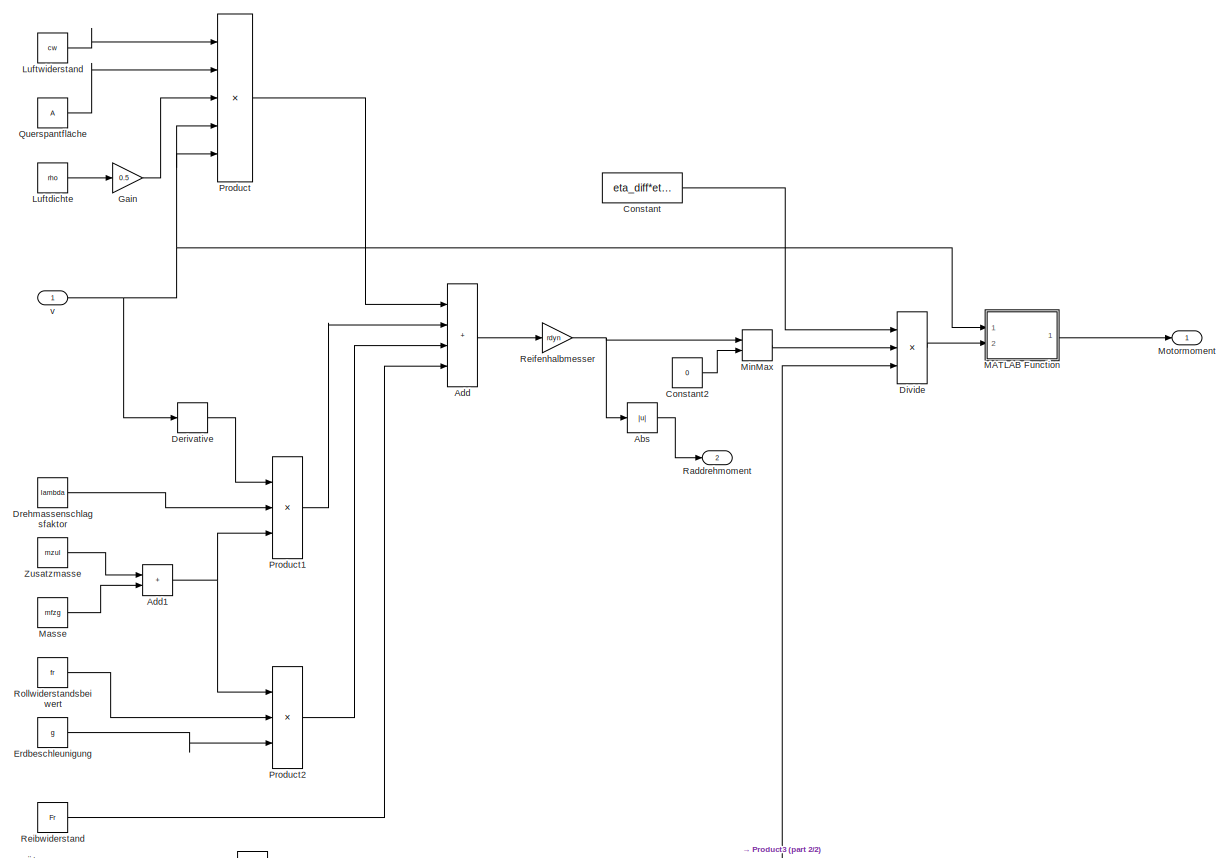
[diagram: Motormoment - part 1/2, most of the canvas]
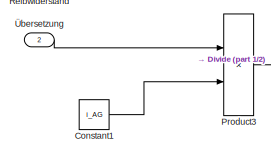
[diagram: Motormoment - part 2/2, bottom left region]
BLOCK [SubSystem] Motormoment
  Ports = [2, 2]
  RequestExecContextInheritance = off
BLOCK [Abs] Motormoment/Abs
  SaturateOnIntegerOverflow = off
BLOCK [Sum] Motormoment/Add
  IconShape = rectangular
  Inputs = ++++
  Ports = [4, 1]
BLOCK [Sum] Motormoment/Add1
  IconShape = rectangular
  Ports = [2, 1]
BLOCK [Constant] Motormoment/Constant
  Value = eta_diff*eta_getr
BLOCK [Constant] Motormoment/Constant1
  Value = i_AG
BLOCK [Constant] Motormoment/Constant2
  Value = 0
BLOCK [Derivative] Motormoment/Derivative
BLOCK [Product] Motormoment/Divide
  Inputs = /*/
  Ports = [3, 1]
BLOCK [Constant] Motormoment/Drehmassenschlagsfaktor
  Value = lambda
BLOCK [Constant] Motormoment/Erdbeschleunigung
  Value = g
BLOCK [Gain] Motormoment/Gain
  Gain = 0.5
BLOCK [Constant] Motormoment/Luftdichte
  Value = rho
BLOCK [Constant] Motormoment/Luftwiderstand
  Value = cw
BLOCK [SubSystem] Motormoment/MATLAB Function
  ErrorFcn = Stateflow.Translate.translate
  PermitHierarchicalResolution = ExplicitOnly
  Ports = [2, 1]
  RequestExecContextInheritance = off
  SFBlockType = MATLAB Function
  TreatAsAtomicUnit = on
BLOCK [Demux] Motormoment/MATLAB Function/ Demux 
  Outputs = 1
  Ports = [1, 1]
BLOCK [S-Function] Motormoment/MATLAB Function/ SFunction 
  EnableBusSupport = on
  FunctionName = sf_sfun
  PortCounts = [2 2]
  Ports = [2, 2]
  SFcnIsStateOwnerBlock = off
  SFunctionDeploymentMode = off
  Tag = Stateflow S-Function 14
BLOCK [Terminator] Motormoment/MATLAB Function/ Terminator 
BLOCK [Outport] Motormoment/MATLAB Function/Mmot
BLOCK [Inport] Motormoment/MATLAB Function/u
  Port = 2
BLOCK [Inport] Motormoment/MATLAB Function/v
BLOCK [Constant] Motormoment/Masse
  Value = mfzg
BLOCK [MinMax] Motormoment/MinMax
  Function = max
  Inputs = 2
  Ports = [2, 1]
BLOCK [Outport] Motormoment/Motormoment
BLOCK [Product] Motormoment/Product
  Inputs = 5
  Ports = [5, 1]
BLOCK [Product] Motormoment/Product1
  Inputs = 3
  Ports = [3, 1]
BLOCK [Product] Motormoment/Product2
  Inputs = 3
  Ports = [3, 1]
BLOCK [Product] Motormoment/Product3
  Ports = [2, 1]
BLOCK [Constant] Motormoment/Querspantfläche
  Value = A
BLOCK [Outport] Motormoment/Raddrehmoment
  Port = 2
BLOCK [Constant] Motormoment/Reibwiderstand
  Value = Fr
BLOCK [Gain] Motormoment/Reifenhalbmesser
  Gain = rdyn
BLOCK [Constant] Motormoment/Rollwiderstandsbeiwert
  Value = fr
BLOCK [Constant] Motormoment/Zusatzmasse
  Value = mzul
BLOCK [Inport] Motormoment/v
BLOCK [Inport] Motormoment/Übersetzung
  Port = 2
BLOCK [Mux] Mux
  DisplayOption = bar
  Ports = [4, 1]
BLOCK [ToWorkspace] To Workspace
  FixptAsFi = on
  MaxDataPoints = inf
  Ports = [1]
  SampleTime = -1
  SaveFormat = Timeseries
  VariableName = simout
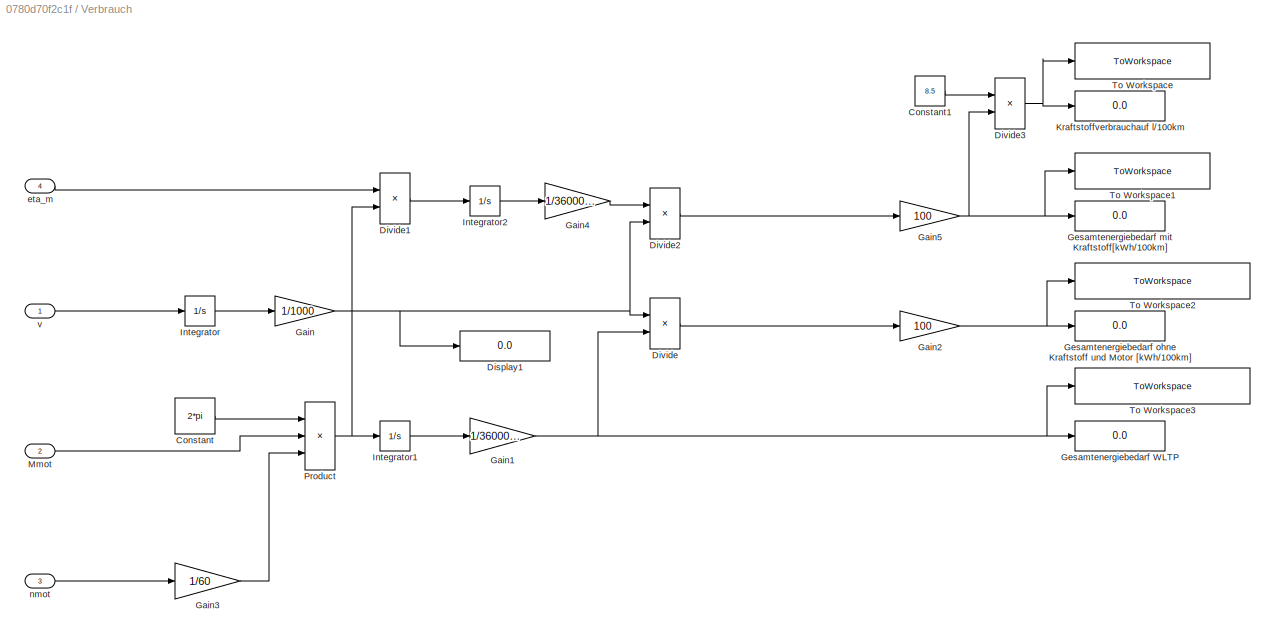
BLOCK [SubSystem] Verbrauch
  Ports = [4]
  RequestExecContextInheritance = off
BLOCK [Constant] Verbrauch/Constant
  Value = 2*pi
BLOCK [Constant] Verbrauch/Constant1
  Value = 8.5
BLOCK [Display] Verbrauch/Display1
  Decimation = 1
  Ports = [1]
BLOCK [Product] Verbrauch/Divide
  Inputs = /*
  Ports = [2, 1]
BLOCK [Product] Verbrauch/Divide1
  Inputs = /*
  Ports = [2, 1]
BLOCK [Product] Verbrauch/Divide2
  Inputs = */
  Ports = [2, 1]
BLOCK [Product] Verbrauch/Divide3
  Inputs = /*
  Ports = [2, 1]
BLOCK [Gain] Verbrauch/Gain
  Gain = 1/1000
BLOCK [Gain] Verbrauch/Gain1
  Gain = 1/3600000
BLOCK [Gain] Verbrauch/Gain2
  Gain = 100
BLOCK [Gain] Verbrauch/Gain3
  Gain = 1/60
BLOCK [Gain] Verbrauch/Gain4
  Gain = 1/3600000
BLOCK [Gain] Verbrauch/Gain5
  Gain = 100
BLOCK [Display] Verbrauch/Gesamtenergiebedarf WLTP
  Decimation = 1
  Ports = [1]
BLOCK [Display] Verbrauch/Gesamtenergiebedarf mit Kraftstoff[kWh//100km]
  Decimation = 1
  Ports = [1]
BLOCK [Display] Verbrauch/Gesamtenergiebedarf ohne Kraftstoff und Motor [kWh//100km]
  Decimation = 1
  Ports = [1]
BLOCK [Integrator] Verbrauch/Integrator
  Ports = [1, 1]
BLOCK [Integrator] Verbrauch/Integrator1
  Ports = [1, 1]
BLOCK [Integrator] Verbrauch/Integrator2
  Ports = [1, 1]
BLOCK [Display] Verbrauch/Kraftstoffverbrauchauf l//100km
  Decimation = 1
  Ports = [1]
BLOCK [Inport] Verbrauch/Mmot
  Port = 2
BLOCK [Product] Verbrauch/Product
  Inputs = 3
  Ports = [3, 1]
BLOCK [ToWorkspace] Verbrauch/To Workspace
  FixptAsFi = on
  MaxDataPoints = inf
  Ports = [1]
  SampleTime = -1
  SaveFormat = Timeseries
  VariableName = Krafts_verb_100km
BLOCK [ToWorkspace] Verbrauch/To Workspace1
  FixptAsFi = on
  MaxDataPoints = inf
  Ports = [1]
  SampleTime = -1
  SaveFormat = Timeseries
  VariableName = Ges_E_verb_100km
BLOCK [ToWorkspace] Verbrauch/To Workspace2
  FixptAsFi = on
  MaxDataPoints = inf
  Ports = [1]
  SampleTime = -1
  SaveFormat = Timeseries
  VariableName = Ges_E_verb_o_M_100km1
BLOCK [ToWorkspace] Verbrauch/To Workspace3
  FixptAsFi = on
  MaxDataPoints = inf
  Ports = [1]
  SampleTime = -1
  SaveFormat = Timeseries
  VariableName = Ges_E_verb_o_M_WLTP
BLOCK [Inport] Verbrauch/eta_m
  Port = 4
BLOCK [Inport] Verbrauch/nmot
  Port = 3
BLOCK [Inport] Verbrauch/v
BLOCK [Lookup_n-D] Verbrauchskennfeld
  BreakpointsForDimension1 = VKM.n_axis(:,1)
  BreakpointsForDimension2 = VKM.M_axis(1,:)
  ExtrapMethod = Clip
  InputPortMap = u0,u1
  InternalRulePriority = Speed
  Ports = [2, 1]
  RndMeth = Simplest
  Table = eta
BLOCK [Lookup_n-D] WLTC
  BreakpointsForDimension1 = WLTP_t
  InputPortMap = u0
  InternalRulePriority = Speed
  NumberOfTableDimensions = 1
  Ports = [1, 1]
  RndMeth = Simplest
  Table = WLTP_v
BLOCK [Gain] kmh2ms
  Gain = 1/3.6
LINE Clock:1 -> WLTC:1
NET Getriebemodell/Constant:1 -> Getriebemodell/Switch1:2, Getriebemodell/Switch:2
LINE Getriebemodell/Leise und Komfort/1.Gang/Constant1:1 -> Getriebemodell/Leise und Komfort/1.Gang/Motordrehzahl:5
LINE Getriebemodell/Leise und Komfort/1.Gang/Constant2:1 -> Getriebemodell/Leise und Komfort/1.Gang/Motordrehzahl:1
LINE Getriebemodell/Leise und Komfort/1.Gang/M_Angebot_Max:1 -> Getriebemodell/Leise und Komfort/1.Gang/Motordrehzahl:2
NET Getriebemodell/Leise und Komfort/1.Gang/Motordrehzahl:1 -> Getriebemodell/Leise und Komfort/1.Gang/Display1:1, Getriebemodell/Leise und Komfort/1.Gang/n_1:1
NET Getriebemodell/Leise und Komfort/1.Gang/Mrad:1 -> Getriebemodell/Leise und Komfort/1.Gang/Display2:1, Getriebemodell/Leise und Komfort/1.Gang/Motordrehzahl:4
NET Getriebemodell/Leise und Komfort/1.Gang/v:1 -> Getriebemodell/Leise und Komfort/1.Gang/M_Angebot_Max:1, Getriebemodell/Leise und Komfort/1.Gang/Motordrehzahl:3
LINE Getriebemodell/Leise und Komfort/1.Gang:1 -> Getriebemodell/Leise und Komfort/Gangauswahl:1
LINE Getriebemodell/Leise und Komfort/2.Gang/Constant1:1 -> Getriebemodell/Leise und Komfort/2.Gang/Motordrehzahl:5
LINE Getriebemodell/Leise und Komfort/2.Gang/Constant2:1 -> Getriebemodell/Leise und Komfort/2.Gang/Motordrehzahl:1
LINE Getriebemodell/Leise und Komfort/2.Gang/M_Angebot_Max:1 -> Getriebemodell/Leise und Komfort/2.Gang/Motordrehzahl:2
NET Getriebemodell/Leise und Komfort/2.Gang/Motordrehzahl:1 -> Getriebemodell/Leise und Komfort/2.Gang/Display1:1, Getriebemodell/Leise und Komfort/2.Gang/n_2:1
NET Getriebemodell/Leise und Komfort/2.Gang/Mrad:1 -> Getriebemodell/Leise und Komfort/2.Gang/Display2:1, Getriebemodell/Leise und Komfort/2.Gang/Motordrehzahl:4
NET Getriebemodell/Leise und Komfort/2.Gang/v:1 -> Getriebemodell/Leise und Komfort/2.Gang/M_Angebot_Max:1, Getriebemodell/Leise und Komfort/2.Gang/Motordrehzahl:3
LINE Getriebemodell/Leise und Komfort/2.Gang:1 -> Getriebemodell/Leise und Komfort/Gangauswahl:2
LINE Getriebemodell/Leise und Komfort/3.Gang/Constant1:1 -> Getriebemodell/Leise und Komfort/3.Gang/Motordrehzahl:5
LINE Getriebemodell/Leise und Komfort/3.Gang/Constant2:1 -> Getriebemodell/Leise und Komfort/3.Gang/Motordrehzahl:1
LINE Getriebemodell/Leise und Komfort/3.Gang/M_Angebot_Max:1 -> Getriebemodell/Leise und Komfort/3.Gang/Motordrehzahl:2
NET Getriebemodell/Leise und Komfort/3.Gang/Motordrehzahl:1 -> Getriebemodell/Leise und Komfort/3.Gang/Display1:1, Getriebemodell/Leise und Komfort/3.Gang/n_3:1
NET Getriebemodell/Leise und Komfort/3.Gang/Mrad:1 -> Getriebemodell/Leise und Komfort/3.Gang/Display2:1, Getriebemodell/Leise und Komfort/3.Gang/Motordrehzahl:4
NET Getriebemodell/Leise und Komfort/3.Gang/v:1 -> Getriebemodell/Leise und Komfort/3.Gang/M_Angebot_Max:1, Getriebemodell/Leise und Komfort/3.Gang/Motordrehzahl:3
LINE Getriebemodell/Leise und Komfort/3.Gang:1 -> Getriebemodell/Leise und Komfort/Gangauswahl:3
LINE Getriebemodell/Leise und Komfort/4.Gang/Constant1:1 -> Getriebemodell/Leise und Komfort/4.Gang/Motordrehzahl:5
LINE Getriebemodell/Leise und Komfort/4.Gang/Constant2:1 -> Getriebemodell/Leise und Komfort/4.Gang/Motordrehzahl:1
LINE Getriebemodell/Leise und Komfort/4.Gang/M_Angebot_Max:1 -> Getriebemodell/Leise und Komfort/4.Gang/Motordrehzahl:2
NET Getriebemodell/Leise und Komfort/4.Gang/Motordrehzahl:1 -> Getriebemodell/Leise und Komfort/4.Gang/Display1:1, Getriebemodell/Leise und Komfort/4.Gang/n_4:1
NET Getriebemodell/Leise und Komfort/4.Gang/Mrad:1 -> Getriebemodell/Leise und Komfort/4.Gang/Display2:1, Getriebemodell/Leise und Komfort/4.Gang/Motordrehzahl:4
NET Getriebemodell/Leise und Komfort/4.Gang/v:1 -> Getriebemodell/Leise und Komfort/4.Gang/M_Angebot_Max:1, Getriebemodell/Leise und Komfort/4.Gang/Motordrehzahl:3
LINE Getriebemodell/Leise und Komfort/4.Gang:1 -> Getriebemodell/Leise und Komfort/Gangauswahl:4
LINE Getriebemodell/Leise und Komfort/5.Gang/Constant1:1 -> Getriebemodell/Leise und Komfort/5.Gang/Motordrehzahl:5
LINE Getriebemodell/Leise und Komfort/5.Gang/Constant2:1 -> Getriebemodell/Leise und Komfort/5.Gang/Motordrehzahl:1
LINE Getriebemodell/Leise und Komfort/5.Gang/M_Angebot_Max:1 -> Getriebemodell/Leise und Komfort/5.Gang/Motordrehzahl:2
NET Getriebemodell/Leise und Komfort/5.Gang/Motordrehzahl:1 -> Getriebemodell/Leise und Komfort/5.Gang/Display1:1, Getriebemodell/Leise und Komfort/5.Gang/n_5:1
NET Getriebemodell/Leise und Komfort/5.Gang/Mrad:1 -> Getriebemodell/Leise und Komfort/5.Gang/Display2:1, Getriebemodell/Leise und Komfort/5.Gang/Motordrehzahl:4
NET Getriebemodell/Leise und Komfort/5.Gang/v:1 -> Getriebemodell/Leise und Komfort/5.Gang/M_Angebot_Max:1, Getriebemodell/Leise und Komfort/5.Gang/Motordrehzahl:3
LINE Getriebemodell/Leise und Komfort/5.Gang:1 -> Getriebemodell/Leise und Komfort/Gangauswahl:5
LINE Getriebemodell/Leise und Komfort/6.Gang/Constant1:1 -> Getriebemodell/Leise und Komfort/6.Gang/Motordrehzahl:5
LINE Getriebemodell/Leise und Komfort/6.Gang/Constant2:1 -> Getriebemodell/Leise und Komfort/6.Gang/Motordrehzahl:1
LINE Getriebemodell/Leise und Komfort/6.Gang/M_Angebot_Max:1 -> Getriebemodell/Leise und Komfort/6.Gang/Motordrehzahl:2
NET Getriebemodell/Leise und Komfort/6.Gang/Motordrehzahl:1 -> Getriebemodell/Leise und Komfort/6.Gang/Display1:1, Getriebemodell/Leise und Komfort/6.Gang/n_6:1
NET Getriebemodell/Leise und Komfort/6.Gang/Mrad:1 -> Getriebemodell/Leise und Komfort/6.Gang/Display2:1, Getriebemodell/Leise und Komfort/6.Gang/Motordrehzahl:4
NET Getriebemodell/Leise und Komfort/6.Gang/v:1 -> Getriebemodell/Leise und Komfort/6.Gang/M_Angebot_Max:1, Getriebemodell/Leise und Komfort/6.Gang/Motordrehzahl:3
LINE Getriebemodell/Leise und Komfort/6.Gang:1 -> Getriebemodell/Leise und Komfort/Gangauswahl:6
LINE Getriebemodell/Leise und Komfort/Gangauswahl:1 -> Getriebemodell/Leise und Komfort/MATLAB Function:2
LINE Getriebemodell/Leise und Komfort/MATLAB Function:1 -> Getriebemodell/Leise und Komfort/i:1
NET Getriebemodell/Leise und Komfort/Mrad:1 -> Getriebemodell/Leise und Komfort/1.Gang:2, Getriebemodell/Leise und Komfort/2.Gang:2, Getriebemodell/Leise und Komfort/3.Gang:2, Getriebemodell/Leise und Komfort/4.Gang:2, Getriebemodell/Leise und Komfort/5.Gang:2, Getriebemodell/Leise und Komfort/6.Gang:2
NET Getriebemodell/Leise und Komfort/v:1 -> Getriebemodell/Leise und Komfort/1.Gang:1, Getriebemodell/Leise und Komfort/2.Gang:1, Getriebemodell/Leise und Komfort/3.Gang:1, Getriebemodell/Leise und Komfort/4.Gang:1, Getriebemodell/Leise und Komfort/5.Gang:1, Getriebemodell/Leise und Komfort/6.Gang:1, Getriebemodell/Leise und Komfort/MATLAB Function:1
NET Getriebemodell/Leise und Komfort:1 -> Getriebemodell/Switch1:1, Getriebemodell/To Workspace4:1
NET Getriebemodell/Mrad:1 -> Getriebemodell/Leise und Komfort:2, Getriebemodell/Sportlich:2, Getriebemodell/Verbrauchoptimiert:2
LINE Getriebemodell/Sportlich/1.Gang/Constant2:1 -> Getriebemodell/Sportlich/1.Gang/Motormoment:2
LINE Getriebemodell/Sportlich/1.Gang/Constant:1 -> Getriebemodell/Sportlich/1.Gang/Motormoment:1
LINE Getriebemodell/Sportlich/1.Gang/M_Angebot_Max:1 -> Getriebemodell/Sportlich/1.Gang/Motormoment:4
NET Getriebemodell/Sportlich/1.Gang/Motormoment:1 -> Getriebemodell/Sportlich/1.Gang/Display:1, Getriebemodell/Sportlich/1.Gang/M_Gang_1:1
LINE Getriebemodell/Sportlich/1.Gang/Mrad:1 -> Getriebemodell/Sportlich/1.Gang/Motormoment:5
NET Getriebemodell/Sportlich/1.Gang/v:1 -> Getriebemodell/Sportlich/1.Gang/M_Angebot_Max:1, Getriebemodell/Sportlich/1.Gang/Motormoment:3
LINE Getriebemodell/Sportlich/1.Gang:1 -> Getriebemodell/Sportlich/Gangauswahl:1
LINE Getriebemodell/Sportlich/2.Gang/Constant2:1 -> Getriebemodell/Sportlich/2.Gang/Motormoment:2
LINE Getriebemodell/Sportlich/2.Gang/Constant:1 -> Getriebemodell/Sportlich/2.Gang/Motormoment:1
NET Getriebemodell/Sportlich/2.Gang/M_Angebot_Max:1 -> Getriebemodell/Sportlich/2.Gang/Display3:1, Getriebemodell/Sportlich/2.Gang/Motormoment:4
NET Getriebemodell/Sportlich/2.Gang/Motormoment:1 -> Getriebemodell/Sportlich/2.Gang/Display:1, Getriebemodell/Sportlich/2.Gang/M_Gang_2:1
NET Getriebemodell/Sportlich/2.Gang/Mrad:1 -> Getriebemodell/Sportlich/2.Gang/Display2:1, Getriebemodell/Sportlich/2.Gang/Motormoment:5
NET Getriebemodell/Sportlich/2.Gang/v:1 -> Getriebemodell/Sportlich/2.Gang/M_Angebot_Max:1, Getriebemodell/Sportlich/2.Gang/Motormoment:3
LINE Getriebemodell/Sportlich/2.Gang:1 -> Getriebemodell/Sportlich/Gangauswahl:2
LINE Getriebemodell/Sportlich/3.Gang/Constant2:1 -> Getriebemodell/Sportlich/3.Gang/Motormoment:2
LINE Getriebemodell/Sportlich/3.Gang/Constant:1 -> Getriebemodell/Sportlich/3.Gang/Motormoment:1
LINE Getriebemodell/Sportlich/3.Gang/M_Angebot_Max:1 -> Getriebemodell/Sportlich/3.Gang/Motormoment:4
NET Getriebemodell/Sportlich/3.Gang/Motormoment:1 -> Getriebemodell/Sportlich/3.Gang/Display:1, Getriebemodell/Sportlich/3.Gang/M_Gang_3:1
LINE Getriebemodell/Sportlich/3.Gang/Mrad:1 -> Getriebemodell/Sportlich/3.Gang/Motormoment:5
NET Getriebemodell/Sportlich/3.Gang/v:1 -> Getriebemodell/Sportlich/3.Gang/M_Angebot_Max:1, Getriebemodell/Sportlich/3.Gang/Motormoment:3
LINE Getriebemodell/Sportlich/3.Gang:1 -> Getriebemodell/Sportlich/Gangauswahl:3
LINE Getriebemodell/Sportlich/4.Gang/Constant2:1 -> Getriebemodell/Sportlich/4.Gang/Motormoment:2
LINE Getriebemodell/Sportlich/4.Gang/Constant:1 -> Getriebemodell/Sportlich/4.Gang/Motormoment:1
LINE Getriebemodell/Sportlich/4.Gang/M_Angebot_Max:1 -> Getriebemodell/Sportlich/4.Gang/Motormoment:4
NET Getriebemodell/Sportlich/4.Gang/Motormoment:1 -> Getriebemodell/Sportlich/4.Gang/Display:1, Getriebemodell/Sportlich/4.Gang/M_Gang_4:1
LINE Getriebemodell/Sportlich/4.Gang/Mrad:1 -> Getriebemodell/Sportlich/4.Gang/Motormoment:5
NET Getriebemodell/Sportlich/4.Gang/v:1 -> Getriebemodell/Sportlich/4.Gang/M_Angebot_Max:1, Getriebemodell/Sportlich/4.Gang/Motormoment:3
LINE Getriebemodell/Sportlich/4.Gang:1 -> Getriebemodell/Sportlich/Gangauswahl:4
LINE Getriebemodell/Sportlich/5.Gang/Constant2:1 -> Getriebemodell/Sportlich/5.Gang/Motormoment:2
LINE Getriebemodell/Sportlich/5.Gang/Constant:1 -> Getriebemodell/Sportlich/5.Gang/Motormoment:1
LINE Getriebemodell/Sportlich/5.Gang/M_Angebot_Max:1 -> Getriebemodell/Sportlich/5.Gang/Motormoment:4
NET Getriebemodell/Sportlich/5.Gang/Motormoment:1 -> Getriebemodell/Sportlich/5.Gang/Display:1, Getriebemodell/Sportlich/5.Gang/M_Gang_5:1
LINE Getriebemodell/Sportlich/5.Gang/Mrad:1 -> Getriebemodell/Sportlich/5.Gang/Motormoment:5
NET Getriebemodell/Sportlich/5.Gang/v:1 -> Getriebemodell/Sportlich/5.Gang/M_Angebot_Max:1, Getriebemodell/Sportlich/5.Gang/Motormoment:3
LINE Getriebemodell/Sportlich/5.Gang:1 -> Getriebemodell/Sportlich/Gangauswahl:5
LINE Getriebemodell/Sportlich/6.Gang/Constant2:1 -> Getriebemodell/Sportlich/6.Gang/Motormoment:2
LINE Getriebemodell/Sportlich/6.Gang/Constant:1 -> Getriebemodell/Sportlich/6.Gang/Motormoment:1
LINE Getriebemodell/Sportlich/6.Gang/M_Angebot_Max:1 -> Getriebemodell/Sportlich/6.Gang/Motormoment:4
NET Getriebemodell/Sportlich/6.Gang/Motormoment:1 -> Getriebemodell/Sportlich/6.Gang/Display:1, Getriebemodell/Sportlich/6.Gang/M_Gang_6:1
LINE Getriebemodell/Sportlich/6.Gang/Mrad:1 -> Getriebemodell/Sportlich/6.Gang/Motormoment:5
NET Getriebemodell/Sportlich/6.Gang/v:1 -> Getriebemodell/Sportlich/6.Gang/M_Angebot_Max:1, Getriebemodell/Sportlich/6.Gang/Motormoment:3
LINE Getriebemodell/Sportlich/6.Gang:1 -> Getriebemodell/Sportlich/Gangauswahl:6
LINE Getriebemodell/Sportlich/Gangauswahl:1 -> Getriebemodell/Sportlich/MATLAB Function:2
LINE Getriebemodell/Sportlich/MATLAB Function:1 -> Getriebemodell/Sportlich/i:1
NET Getriebemodell/Sportlich/Mrad:1 -> Getriebemodell/Sportlich/1.Gang:2, Getriebemodell/Sportlich/2.Gang:2, Getriebemodell/Sportlich/3.Gang:2, Getriebemodell/Sportlich/4.Gang:2, Getriebemodell/Sportlich/5.Gang:2, Getriebemodell/Sportlich/6.Gang:2
NET Getriebemodell/Sportlich/v:1 -> Getriebemodell/Sportlich/1.Gang:1, Getriebemodell/Sportlich/2.Gang:1, Getriebemodell/Sportlich/3.Gang:1, Getriebemodell/Sportlich/4.Gang:1, Getriebemodell/Sportlich/5.Gang:1, Getriebemodell/Sportlich/6.Gang:1, Getriebemodell/Sportlich/MATLAB Function:1
NET Getriebemodell/Sportlich:1 -> Getriebemodell/Switch:3, Getriebemodell/To Workspace:1
LINE Getriebemodell/Switch1:1 -> Getriebemodell/Übersetzung:1
LINE Getriebemodell/Switch:1 -> Getriebemodell/Switch1:3
LINE Getriebemodell/Verbrauchoptimiert/1.Gang/Constant1:1 -> Getriebemodell/Verbrauchoptimiert/1.Gang/Motordrehzahl:5
NET Getriebemodell/Verbrauchoptimiert/1.Gang/Constant2:1 -> Getriebemodell/Verbrauchoptimiert/1.Gang/Motordrehzahl:1, Getriebemodell/Verbrauchoptimiert/1.Gang/Motormoment:2
LINE Getriebemodell/Verbrauchoptimiert/1.Gang/Constant:1 -> Getriebemodell/Verbrauchoptimiert/1.Gang/Motormoment:1
NET Getriebemodell/Verbrauchoptimiert/1.Gang/M_Angebot_Max:1 -> Getriebemodell/Verbrauchoptimiert/1.Gang/Motordrehzahl:2, Getriebemodell/Verbrauchoptimiert/1.Gang/Motormoment:4
NET Getriebemodell/Verbrauchoptimiert/1.Gang/Motordrehzahl:1 -> Getriebemodell/Verbrauchoptimiert/1.Gang/Display1:1, Getriebemodell/Verbrauchoptimiert/1.Gang/Verbrauchskennfeld:1
NET Getriebemodell/Verbrauchoptimiert/1.Gang/Motormoment:1 -> Getriebemodell/Verbrauchoptimiert/1.Gang/Display:1, Getriebemodell/Verbrauchoptimiert/1.Gang/Verbrauchskennfeld:2
NET Getriebemodell/Verbrauchoptimiert/1.Gang/Mrad:1 -> Getriebemodell/Verbrauchoptimiert/1.Gang/Display2:1, Getriebemodell/Verbrauchoptimiert/1.Gang/Motordrehzahl:4, Getriebemodell/Verbrauchoptimiert/1.Gang/Motormoment:5
NET Getriebemodell/Verbrauchoptimiert/1.Gang/Verbrauchskennfeld:1 -> Getriebemodell/Verbrauchoptimiert/1.Gang/Display4:1, Getriebemodell/Verbrauchoptimiert/1.Gang/eta_1:1
NET Getriebemodell/Verbrauchoptimiert/1.Gang/v:1 -> Getriebemodell/Verbrauchoptimiert/1.Gang/M_Angebot_Max:1, Getriebemodell/Verbrauchoptimiert/1.Gang/Motordrehzahl:3, Getriebemodell/Verbrauchoptimiert/1.Gang/Motormoment:3
LINE Getriebemodell/Verbrauchoptimiert/1.Gang:1 -> Getriebemodell/Verbrauchoptimiert/Gangauswahl:1
LINE Getriebemodell/Verbrauchoptimiert/2.Gang/Constant1:1 -> Getriebemodell/Verbrauchoptimiert/2.Gang/Motordrehzahl:5
NET Getriebemodell/Verbrauchoptimiert/2.Gang/Constant2:1 -> Getriebemodell/Verbrauchoptimiert/2.Gang/Motordrehzahl:1, Getriebemodell/Verbrauchoptimiert/2.Gang/Motormoment:2
LINE Getriebemodell/Verbrauchoptimiert/2.Gang/Constant:1 -> Getriebemodell/Verbrauchoptimiert/2.Gang/Motormoment:1
NET Getriebemodell/Verbrauchoptimiert/2.Gang/M_Angebot_Max:1 -> Getriebemodell/Verbrauchoptimiert/2.Gang/Display3:1, Getriebemodell/Verbrauchoptimiert/2.Gang/Motordrehzahl:2, Getriebemodell/Verbrauchoptimiert/2.Gang/Motormoment:4
NET Getriebemodell/Verbrauchoptimiert/2.Gang/Motordrehzahl:1 -> Getriebemodell/Verbrauchoptimiert/2.Gang/Display1:1, Getriebemodell/Verbrauchoptimiert/2.Gang/Verbrauchskennfeld:1
NET Getriebemodell/Verbrauchoptimiert/2.Gang/Motormoment:1 -> Getriebemodell/Verbrauchoptimiert/2.Gang/Display:1, Getriebemodell/Verbrauchoptimiert/2.Gang/Verbrauchskennfeld:2
NET Getriebemodell/Verbrauchoptimiert/2.Gang/Mrad:1 -> Getriebemodell/Verbrauchoptimiert/2.Gang/Display2:1, Getriebemodell/Verbrauchoptimiert/2.Gang/Motordrehzahl:4, Getriebemodell/Verbrauchoptimiert/2.Gang/Motormoment:5
NET Getriebemodell/Verbrauchoptimiert/2.Gang/Verbrauchskennfeld:1 -> Getriebemodell/Verbrauchoptimiert/2.Gang/Display4:1, Getriebemodell/Verbrauchoptimiert/2.Gang/eta_2:1
NET Getriebemodell/Verbrauchoptimiert/2.Gang/v:1 -> Getriebemodell/Verbrauchoptimiert/2.Gang/M_Angebot_Max:1, Getriebemodell/Verbrauchoptimiert/2.Gang/Motordrehzahl:3, Getriebemodell/Verbrauchoptimiert/2.Gang/Motormoment:3
LINE Getriebemodell/Verbrauchoptimiert/2.Gang:1 -> Getriebemodell/Verbrauchoptimiert/Gangauswahl:2
LINE Getriebemodell/Verbrauchoptimiert/3.Gang/Constant1:1 -> Getriebemodell/Verbrauchoptimiert/3.Gang/Motordrehzahl:5
NET Getriebemodell/Verbrauchoptimiert/3.Gang/Constant2:1 -> Getriebemodell/Verbrauchoptimiert/3.Gang/Motordrehzahl:1, Getriebemodell/Verbrauchoptimiert/3.Gang/Motormoment:2
LINE Getriebemodell/Verbrauchoptimiert/3.Gang/Constant:1 -> Getriebemodell/Verbrauchoptimiert/3.Gang/Motormoment:1
NET Getriebemodell/Verbrauchoptimiert/3.Gang/M_Angebot_Max:1 -> Getriebemodell/Verbrauchoptimiert/3.Gang/Motordrehzahl:2, Getriebemodell/Verbrauchoptimiert/3.Gang/Motormoment:4
NET Getriebemodell/Verbrauchoptimiert/3.Gang/Motordrehzahl:1 -> Getriebemodell/Verbrauchoptimiert/3.Gang/Display1:1, Getriebemodell/Verbrauchoptimiert/3.Gang/Verbrauchskennfeld:1
NET Getriebemodell/Verbrauchoptimiert/3.Gang/Motormoment:1 -> Getriebemodell/Verbrauchoptimiert/3.Gang/Display:1, Getriebemodell/Verbrauchoptimiert/3.Gang/Verbrauchskennfeld:2
NET Getriebemodell/Verbrauchoptimiert/3.Gang/Mrad:1 -> Getriebemodell/Verbrauchoptimiert/3.Gang/Display2:1, Getriebemodell/Verbrauchoptimiert/3.Gang/Motordrehzahl:4, Getriebemodell/Verbrauchoptimiert/3.Gang/Motormoment:5
NET Getriebemodell/Verbrauchoptimiert/3.Gang/Verbrauchskennfeld:1 -> Getriebemodell/Verbrauchoptimiert/3.Gang/Display4:1, Getriebemodell/Verbrauchoptimiert/3.Gang/eta_3:1
NET Getriebemodell/Verbrauchoptimiert/3.Gang/v:1 -> Getriebemodell/Verbrauchoptimiert/3.Gang/M_Angebot_Max:1, Getriebemodell/Verbrauchoptimiert/3.Gang/Motordrehzahl:3, Getriebemodell/Verbrauchoptimiert/3.Gang/Motormoment:3
LINE Getriebemodell/Verbrauchoptimiert/3.Gang:1 -> Getriebemodell/Verbrauchoptimiert/Gangauswahl:3
LINE Getriebemodell/Verbrauchoptimiert/4.Gang/Constant1:1 -> Getriebemodell/Verbrauchoptimiert/4.Gang/Motordrehzahl:5
NET Getriebemodell/Verbrauchoptimiert/4.Gang/Constant2:1 -> Getriebemodell/Verbrauchoptimiert/4.Gang/Motordrehzahl:1, Getriebemodell/Verbrauchoptimiert/4.Gang/Motormoment:2
LINE Getriebemodell/Verbrauchoptimiert/4.Gang/Constant:1 -> Getriebemodell/Verbrauchoptimiert/4.Gang/Motormoment:1
NET Getriebemodell/Verbrauchoptimiert/4.Gang/M_Angebot_Max:1 -> Getriebemodell/Verbrauchoptimiert/4.Gang/Motordrehzahl:2, Getriebemodell/Verbrauchoptimiert/4.Gang/Motormoment:4
NET Getriebemodell/Verbrauchoptimiert/4.Gang/Motordrehzahl:1 -> Getriebemodell/Verbrauchoptimiert/4.Gang/Display1:1, Getriebemodell/Verbrauchoptimiert/4.Gang/Verbrauchskennfeld:1
NET Getriebemodell/Verbrauchoptimiert/4.Gang/Motormoment:1 -> Getriebemodell/Verbrauchoptimiert/4.Gang/Display:1, Getriebemodell/Verbrauchoptimiert/4.Gang/Verbrauchskennfeld:2
NET Getriebemodell/Verbrauchoptimiert/4.Gang/Mrad:1 -> Getriebemodell/Verbrauchoptimiert/4.Gang/Display2:1, Getriebemodell/Verbrauchoptimiert/4.Gang/Motordrehzahl:4, Getriebemodell/Verbrauchoptimiert/4.Gang/Motormoment:5
NET Getriebemodell/Verbrauchoptimiert/4.Gang/Verbrauchskennfeld:1 -> Getriebemodell/Verbrauchoptimiert/4.Gang/Display4:1, Getriebemodell/Verbrauchoptimiert/4.Gang/eta_4:1
NET Getriebemodell/Verbrauchoptimiert/4.Gang/v:1 -> Getriebemodell/Verbrauchoptimiert/4.Gang/M_Angebot_Max:1, Getriebemodell/Verbrauchoptimiert/4.Gang/Motordrehzahl:3, Getriebemodell/Verbrauchoptimiert/4.Gang/Motormoment:3
LINE Getriebemodell/Verbrauchoptimiert/4.Gang:1 -> Getriebemodell/Verbrauchoptimiert/Gangauswahl:4
LINE Getriebemodell/Verbrauchoptimiert/5.Gang/Constant1:1 -> Getriebemodell/Verbrauchoptimiert/5.Gang/Motordrehzahl:5
NET Getriebemodell/Verbrauchoptimiert/5.Gang/Constant2:1 -> Getriebemodell/Verbrauchoptimiert/5.Gang/Motordrehzahl:1, Getriebemodell/Verbrauchoptimiert/5.Gang/Motormoment:2
LINE Getriebemodell/Verbrauchoptimiert/5.Gang/Constant:1 -> Getriebemodell/Verbrauchoptimiert/5.Gang/Motormoment:1
NET Getriebemodell/Verbrauchoptimiert/5.Gang/M_Angebot_Max:1 -> Getriebemodell/Verbrauchoptimiert/5.Gang/Motordrehzahl:2, Getriebemodell/Verbrauchoptimiert/5.Gang/Motormoment:4
NET Getriebemodell/Verbrauchoptimiert/5.Gang/Motordrehzahl:1 -> Getriebemodell/Verbrauchoptimiert/5.Gang/Display1:1, Getriebemodell/Verbrauchoptimiert/5.Gang/Verbrauchskennfeld:1
NET Getriebemodell/Verbrauchoptimiert/5.Gang/Motormoment:1 -> Getriebemodell/Verbrauchoptimiert/5.Gang/Display:1, Getriebemodell/Verbrauchoptimiert/5.Gang/Verbrauchskennfeld:2
NET Getriebemodell/Verbrauchoptimiert/5.Gang/Mrad:1 -> Getriebemodell/Verbrauchoptimiert/5.Gang/Display2:1, Getriebemodell/Verbrauchoptimiert/5.Gang/Motordrehzahl:4, Getriebemodell/Verbrauchoptimiert/5.Gang/Motormoment:5
NET Getriebemodell/Verbrauchoptimiert/5.Gang/Verbrauchskennfeld:1 -> Getriebemodell/Verbrauchoptimiert/5.Gang/Display4:1, Getriebemodell/Verbrauchoptimiert/5.Gang/eta_5:1
NET Getriebemodell/Verbrauchoptimiert/5.Gang/v:1 -> Getriebemodell/Verbrauchoptimiert/5.Gang/M_Angebot_Max:1, Getriebemodell/Verbrauchoptimiert/5.Gang/Motordrehzahl:3, Getriebemodell/Verbrauchoptimiert/5.Gang/Motormoment:3
LINE Getriebemodell/Verbrauchoptimiert/5.Gang:1 -> Getriebemodell/Verbrauchoptimiert/Gangauswahl:5
LINE Getriebemodell/Verbrauchoptimiert/6.Gang/Constant1:1 -> Getriebemodell/Verbrauchoptimiert/6.Gang/Motordrehzahl:5
NET Getriebemodell/Verbrauchoptimiert/6.Gang/Constant2:1 -> Getriebemodell/Verbrauchoptimiert/6.Gang/Motordrehzahl:1, Getriebemodell/Verbrauchoptimiert/6.Gang/Motormoment:2
LINE Getriebemodell/Verbrauchoptimiert/6.Gang/Constant:1 -> Getriebemodell/Verbrauchoptimiert/6.Gang/Motormoment:1
NET Getriebemodell/Verbrauchoptimiert/6.Gang/M_Angebot_Max:1 -> Getriebemodell/Verbrauchoptimiert/6.Gang/Motordrehzahl:2, Getriebemodell/Verbrauchoptimiert/6.Gang/Motormoment:4
NET Getriebemodell/Verbrauchoptimiert/6.Gang/Motordrehzahl:1 -> Getriebemodell/Verbrauchoptimiert/6.Gang/Display1:1, Getriebemodell/Verbrauchoptimiert/6.Gang/Verbrauchskennfeld:1
NET Getriebemodell/Verbrauchoptimiert/6.Gang/Motormoment:1 -> Getriebemodell/Verbrauchoptimiert/6.Gang/Display:1, Getriebemodell/Verbrauchoptimiert/6.Gang/Verbrauchskennfeld:2
NET Getriebemodell/Verbrauchoptimiert/6.Gang/Mrad:1 -> Getriebemodell/Verbrauchoptimiert/6.Gang/Display2:1, Getriebemodell/Verbrauchoptimiert/6.Gang/Motordrehzahl:4, Getriebemodell/Verbrauchoptimiert/6.Gang/Motormoment:5
NET Getriebemodell/Verbrauchoptimiert/6.Gang/Verbrauchskennfeld:1 -> Getriebemodell/Verbrauchoptimiert/6.Gang/Display4:1, Getriebemodell/Verbrauchoptimiert/6.Gang/eta_6:1
NET Getriebemodell/Verbrauchoptimiert/6.Gang/v:1 -> Getriebemodell/Verbrauchoptimiert/6.Gang/M_Angebot_Max:1, Getriebemodell/Verbrauchoptimiert/6.Gang/Motordrehzahl:3, Getriebemodell/Verbrauchoptimiert/6.Gang/Motormoment:3
LINE Getriebemodell/Verbrauchoptimiert/6.Gang:1 -> Getriebemodell/Verbrauchoptimiert/Gangauswahl:6
LINE Getriebemodell/Verbrauchoptimiert/Gangauswahl:1 -> Getriebemodell/Verbrauchoptimiert/MATLAB Function:2
LINE Getriebemodell/Verbrauchoptimiert/MATLAB Function:1 -> Getriebemodell/Verbrauchoptimiert/i:1
NET Getriebemodell/Verbrauchoptimiert/Mrad:1 -> Getriebemodell/Verbrauchoptimiert/1.Gang:2, Getriebemodell/Verbrauchoptimiert/2.Gang:2, Getriebemodell/Verbrauchoptimiert/3.Gang:2, Getriebemodell/Verbrauchoptimiert/4.Gang:2, Getriebemodell/Verbrauchoptimiert/5.Gang:2, Getriebemodell/Verbrauchoptimiert/6.Gang:2
NET Getriebemodell/Verbrauchoptimiert/v:1 -> Getriebemodell/Verbrauchoptimiert/1.Gang:1, Getriebemodell/Verbrauchoptimiert/2.Gang:1, Getriebemodell/Verbrauchoptimiert/3.Gang:1, Getriebemodell/Verbrauchoptimiert/4.Gang:1, Getriebemodell/Verbrauchoptimiert/5.Gang:1, Getriebemodell/Verbrauchoptimiert/6.Gang:1, Getriebemodell/Verbrauchoptimiert/MATLAB Function:1
NET Getriebemodell/Verbrauchoptimiert:1 -> Getriebemodell/Switch:1, Getriebemodell/To Workspace1:1
NET Getriebemodell/v:1 -> Getriebemodell/Leise und Komfort:1, Getriebemodell/Sportlich:1, Getriebemodell/Verbrauchoptimiert:1
NET Getriebemodell:1 -> Motordrehzahl:2, Motormoment:2
LINE Motordrehzahl/1//(2pi):1 -> Motordrehzahl/Divide:1
LINE Motordrehzahl/Constant1:1 -> Motordrehzahl/Product3:2
LINE Motordrehzahl/Constant2:1 -> Motordrehzahl/Switch:3
LINE Motordrehzahl/Divide:1 -> Motordrehzahl/rps2rpm:1
LINE Motordrehzahl/Dyn. Reifenhalbmesser:1 -> Motordrehzahl/Divide:2
LINE Motordrehzahl/Product3:1 -> Motordrehzahl/Divide:3
LINE Motordrehzahl/Switch:1 -> Motordrehzahl/nmot:1
LINE Motordrehzahl/rps2rpm:1 -> Motordrehzahl/Switch:1
NET Motordrehzahl/v:1 -> Motordrehzahl/1//(2pi):1, Motordrehzahl/Switch:2
LINE Motordrehzahl/Übersetzung:1 -> Motordrehzahl/Product3:1
NET Motordrehzahl:1 -> Mux:4, Verbrauch:3, Verbrauchskennfeld:1
LINE Motormoment/Abs:1 -> Motormoment/Raddrehmoment:1
NET Motormoment/Add1:1 -> Motormoment/Product1:3, Motormoment/Product2:1
LINE Motormoment/Add:1 -> Motormoment/Reifenhalbmesser:1
LINE Motormoment/Constant1:1 -> Motormoment/Product3:2
LINE Motormoment/Constant2:1 -> Motormoment/MinMax:2
LINE Motormoment/Constant:1 -> Motormoment/Divide:1
LINE Motormoment/Derivative:1 -> Motormoment/Product1:1
LINE Motormoment/Divide:1 -> Motormoment/MATLAB Function:2
LINE Motormoment/Drehmassenschlagsfaktor:1 -> Motormoment/Product1:2
LINE Motormoment/Erdbeschleunigung:1 -> Motormoment/Product2:3
LINE Motormoment/Gain:1 -> Motormoment/Product:3
LINE Motormoment/Luftdichte:1 -> Motormoment/Gain:1
LINE Motormoment/Luftwiderstand:1 -> Motormoment/Product:1
LINE Motormoment/MATLAB Function:1 -> Motormoment/Motormoment:1
LINE Motormoment/Masse:1 -> Motormoment/Add1:2
LINE Motormoment/MinMax:1 -> Motormoment/Divide:2
LINE Motormoment/Product1:1 -> Motormoment/Add:2
LINE Motormoment/Product2:1 -> Motormoment/Add:3
LINE Motormoment/Product3:1 -> Motormoment/Divide:3
LINE Motormoment/Product:1 -> Motormoment/Add:1
LINE Motormoment/Querspantfläche:1 -> Motormoment/Product:2
LINE Motormoment/Reibwiderstand:1 -> Motormoment/Add:4
NET Motormoment/Reifenhalbmesser:1 -> Motormoment/Abs:1, Motormoment/MinMax:1
LINE Motormoment/Rollwiderstandsbeiwert:1 -> Motormoment/Product2:2
LINE Motormoment/Zusatzmasse:1 -> Motormoment/Add1:1
NET Motormoment/v:1 -> Motormoment/Derivative:1, Motormoment/MATLAB Function:1, Motormoment/Product:4, Motormoment/Product:5
LINE Motormoment/Übersetzung:1 -> Motormoment/Product3:1
NET Motormoment:1 -> Mux:2, Verbrauch:2, Verbrauchskennfeld:2
LINE Motormoment:2 -> Getriebemodell:2
LINE Mux:1 -> To Workspace:1
LINE Verbrauch/Constant1:1 -> Verbrauch/Divide3:1
LINE Verbrauch/Constant:1 -> Verbrauch/Product:1
LINE Verbrauch/Divide1:1 -> Verbrauch/Integrator2:1
LINE Verbrauch/Divide2:1 -> Verbrauch/Gain5:1
NET Verbrauch/Divide3:1 -> Verbrauch/Kraftstoffverbrauchauf l//100km:1, Verbrauch/To Workspace:1
LINE Verbrauch/Divide:1 -> Verbrauch/Gain2:1
NET Verbrauch/Gain1:1 -> Verbrauch/Divide:2, Verbrauch/Gesamtenergiebedarf WLTP:1, Verbrauch/To Workspace3:1
NET Verbrauch/Gain2:1 -> Verbrauch/Gesamtenergiebedarf ohne Kraftstoff und Motor [kWh//100km]:1, Verbrauch/To Workspace2:1
LINE Verbrauch/Gain3:1 -> Verbrauch/Product:3
LINE Verbrauch/Gain4:1 -> Verbrauch/Divide2:1
NET Verbrauch/Gain5:1 -> Verbrauch/Divide3:2, Verbrauch/Gesamtenergiebedarf mit Kraftstoff[kWh//100km]:1, Verbrauch/To Workspace1:1
NET Verbrauch/Gain:1 -> Verbrauch/Display1:1, Verbrauch/Divide2:2, Verbrauch/Divide:1
LINE Verbrauch/Integrator1:1 -> Verbrauch/Gain1:1
LINE Verbrauch/Integrator2:1 -> Verbrauch/Gain4:1
LINE Verbrauch/Integrator:1 -> Verbrauch/Gain:1
LINE Verbrauch/Mmot:1 -> Verbrauch/Product:2
NET Verbrauch/Product:1 -> Verbrauch/Divide1:2, Verbrauch/Integrator1:1
LINE Verbrauch/eta_m:1 -> Verbrauch/Divide1:1
LINE Verbrauch/nmot:1 -> Verbrauch/Gain3:1
LINE Verbrauch/v:1 -> Verbrauch/Integrator:1
NET Verbrauchskennfeld:1 -> Kraftstoffverbrauchauf l//100km:1, Mux:3, Verbrauch:4
NET WLTC:1 -> Getriebemodell:1, kmh2ms:1
NET kmh2ms:1 -> Motordrehzahl:1, Motormoment:1, Mux:1, Verbrauch:1
note: NET lines group one-source signal fan-out (src -> all destinations, sorted); 1:1 wires keep LINE
CHART Getriebemodell/Verbrauchoptimiert/4.Gang/Motormoment states=1 transitions=1
  STATE_LABEL 'eML_blk_kernel()'
  STATE_LABEL 'SCRIPT:\nfunction Mmot = fcn(eta, i, v, Man, Mrad)\n\n%Man : Angebotsdrehmoment vom Rad(Abhängig von v und i)\n%Mrad : Aktuelle Raddrehmoment\n\nif (19.991196007843840<=v) && (v<=(1.332746400522923e+02)) && (Mrad<Man)\n    Mmot =Mrad/(i*eta);\nelse\n     Mmot=0;\n    \n\nend'
CHART Getriebemodell/Verbrauchoptimiert/5.Gang/Motordrehzahl states=1 transitions=1
  STATE_LABEL 'eML_blk_kernel()'
  STATE_LABEL 'SCRIPT:\nfunction nmot = fcn(i, Man,v , Mrad, rdyn)\n%Man : Angebotsdrehmoment vom Rad(Abhängig von v und i)\n%Mrad : Aktuelle Raddrehmoment\n\nif (30.437575882530865<=v) && (v<=(2.029171725502058e+02)) && (Mrad<Man)\n    nmot =v*i*30/(rdyn*pi()*3.6);\nelse\n    nmot=0;\n\n\nend'
CHART Getriebemodell/Verbrauchoptimiert/5.Gang/Motormoment states=1 transitions=1
  STATE_LABEL 'eML_blk_kernel()'
  STATE_LABEL 'SCRIPT:\nfunction Mmot = fcn(eta, i, v, Man, Mrad)\n\n%Man : Angebotsdrehmoment vom Rad(Abhängig von v und i)\n%Mrad : Aktuelle Raddrehmoment\n\nif (30.437575882530865<=v) && (v<=(2.029171725502058e+02)) && (Mrad<Man)\n    Mmot =Mrad/(i*eta);\nelse\n     Mmot=0;\n    \n\nend'
CHART Getriebemodell/Verbrauchoptimiert/6.Gang/Motordrehzahl states=1 transitions=1
  STATE_LABEL 'eML_blk_kernel()'
  STATE_LABEL 'SCRIPT:\nfunction nmot = fcn(i, Man,v , Mrad, rdyn)\n%Man : Angebotsdrehmoment vom Rad(Abhängig von v und i)\n%Mrad : Aktuelle Raddrehmoment\n\nif (47.398973130048060<=v) && (v<=(3.159931542003204e+02)) && (Mrad<Man)\n    nmot =v*i*30/(rdyn*pi()*3.6);\nelse\n    nmot=0;\n\n\nend'
CHART Getriebemodell/Verbrauchoptimiert/6.Gang/Motormoment states=1 transitions=1
  STATE_LABEL 'eML_blk_kernel()'
  STATE_LABEL 'SCRIPT:\nfunction Mmot = fcn(eta, i, v, Man, Mrad)\n\n%Man : Angebotsdrehmoment vom Rad(Abhängig von v und i)\n%Mrad : Aktuelle Raddrehmoment\n\nif (47.398973130048060<=v) && (v<=(3.159931542003204e+02)) && (Mrad<Man)\n    Mmot =Mrad/(i*eta);\nelse\n     Mmot=0;\n    \n\nend'
CHART Getriebemodell/Verbrauchoptimiert/Gangauswahl states=1 transitions=1
  STATE_LABEL 'eML_blk_kernel()'
  STATE_LABEL 'SCRIPT:\nfunction i = fcn(eta_1, eta_2, eta_3, eta_4, eta_5, eta_6)\n\neta_wahl=[eta_1 eta_2 eta_3 eta_4 eta_5 eta_6];\nMax=max(eta_wahl);\n\n\nif (Max==eta_1)\n    i=4.776;\n     elseif (Max==eta_2)\n          i=3.360;\n              elseif (Max==eta_3)\n                  i=2.311;\n                      elseif (Max==eta_4)\n                        i=1.553;\n                             elseif (Max==eta_5)\n     ...<+186ch>'
CHART Motormoment/MATLAB Function states=1 transitions=1
  STATE_LABEL 'eML_blk_kernel()'
  STATE_LABEL 'SCRIPT:\nfunction Mmot = fcn(v,u)\nif v==0\n    Mmot=0;\nelse\nMmot = u;\nend\n'
CHART Getriebemodell/Verbrauchoptimiert/MATLAB Function states=1 transitions=1
  STATE_LABEL 'eML_blk_kernel()'
  STATE_LABEL 'SCRIPT:\nfunction i = fcn(v,u)\nif (v==0) | (v<6.500487311595789)\n    i = 4.776;\nelse\n    i=u;\nend'
CHART Getriebemodell/Sportlich/1.Gang/Motormoment states=1 transitions=1
  STATE_LABEL 'eML_blk_kernel()'
  STATE_LABEL 'SCRIPT:\nfunction Mmot = fcn(eta, i, v, Man, Mrad)\n\n%Man : Angebotsdrehmoment vom Rad(Abhängig von v und i)\n%Mrad : Aktuelle Raddrehmoment\n\nif (v<=43.336582077305260) && (Mrad<Man)\n    Mmot =Mrad/(i*eta);\nelse\n     Mmot=0;\n    \n\nend'
CHART Getriebemodell/Sportlich/2.Gang/Motormoment states=1 transitions=1
  STATE_LABEL 'eML_blk_kernel()'
  STATE_LABEL 'SCRIPT:\nfunction Mmot = fcn(eta, i, v, Man, Mrad)\n\n%Man : Angebotsdrehmoment vom Rad(Abhängig von v und i)\n%Mrad : Aktuelle Raddrehmoment\n\nif (9.239978392911157<=v) && (v<=61.599855952741040) && (Mrad<Man)\n    Mmot =Mrad/(i*eta);\nelse\n     Mmot=0;\n    \n\nend'
CHART Getriebemodell/Sportlich/3.Gang/Motormoment states=1 transitions=1
  STATE_LABEL 'eML_blk_kernel()'
  STATE_LABEL 'SCRIPT:\nfunction Mmot = fcn(eta, i, v, Man, Mrad)\n\n%Man : Angebotsdrehmoment vom Rad(Abhängig von v und i)\n%Mrad : Aktuelle Raddrehmoment\n\nif (13.434152920892030<=v) && (v<=89.561019472613540) && (Mrad<Man)\n    Mmot =Mrad/(i*eta);\nelse\n     Mmot=0;\n    \n\nend'
CHART Getriebemodell/Sportlich/4.Gang/Motormoment states=1 transitions=1
  STATE_LABEL 'eML_blk_kernel()'
  STATE_LABEL 'SCRIPT:\nfunction Mmot = fcn(eta, i, v, Man, Mrad)\n\n%Man : Angebotsdrehmoment vom Rad(Abhängig von v und i)\n%Mrad : Aktuelle Raddrehmoment\n\nif (19.991196007843840<=v) && (v<=(1.332746400522923e+02)) && (Mrad<Man)\n    Mmot =Mrad/(i*eta);\nelse\n     Mmot=0;\n    \n\nend'
CHART Getriebemodell/Sportlich/5.Gang/Motormoment states=1 transitions=1
  STATE_LABEL 'eML_blk_kernel()'
  STATE_LABEL 'SCRIPT:\nfunction Mmot = fcn(eta, i, v, Man, Mrad)\n\n%Man : Angebotsdrehmoment vom Rad(Abhängig von v und i)\n%Mrad : Aktuelle Raddrehmoment\n\nif (30.437575882530865<=v) && (v<=(2.029171725502058e+02)) && (Mrad<Man)\n    Mmot =Mrad/(i*eta);\nelse\n     Mmot=0;\n    \n\nend'
CHART Getriebemodell/Sportlich/6.Gang/Motormoment states=1 transitions=1
  STATE_LABEL 'eML_blk_kernel()'
  STATE_LABEL 'SCRIPT:\nfunction Mmot = fcn(eta, i, v, Man, Mrad)\n\n%Man : Angebotsdrehmoment vom Rad(Abhängig von v und i)\n%Mrad : Aktuelle Raddrehmoment\n\nif (47.398973130048060<=v) && (v<=(3.159931542003204e+02)) && (Mrad<Man)\n    Mmot =Mrad/(i*eta);\nelse\n     Mmot=0;\n    \n\nend'
CHART Getriebemodell/Sportlich/Gangauswahl states=1 transitions=1
  STATE_LABEL 'eML_blk_kernel()'
  STATE_LABEL 'SCRIPT:\nfunction i = fcn(M_Gang_1, M_Gang_2, M_Gang_3, M_Gang_4, M_Gang_5, M_Gang_6)\n\neta_wahl=[M_Gang_1 M_Gang_2 M_Gang_3 M_Gang_4 M_Gang_5 M_Gang_6];\nMax=max(eta_wahl);\n\nif (Max==M_Gang_1)\n    i=4.776;\n     elseif (Max==M_Gang_2)\n          i=3.360;\n              elseif (Max==M_Gang_3)\n                  i=2.311;\n                      elseif (Max==M_Gang_4)\n                        i=1.553;\n       ...<+239ch>'
CHART Getriebemodell/Verbrauchoptimiert/1.Gang/Motordrehzahl states=1 transitions=1
  STATE_LABEL 'eML_blk_kernel()'
  STATE_LABEL 'SCRIPT:\nfunction nmot = fcn(i, Man,v , Mrad, rdyn)\n%Man : Angebotsdrehmoment vom Rad(Abhängig von v und i)\n%Mrad : Aktuelle Raddrehmoment\n\nif (v<=43.336582077305260) && (Mrad<Man)\n    nmot =v*i*30/(rdyn*pi()*3.6);\nelse\n    nmot=0;\n\n\nend'
CHART Getriebemodell/Sportlich/MATLAB Function states=1 transitions=1
  STATE_LABEL 'eML_blk_kernel()'
  STATE_LABEL 'SCRIPT:\nfunction i = fcn(v,u)\nif (v==0) | (v<6.500487311595789)\n    i = 4.776;\nelse\n    i=u;\nend'
CHART Getriebemodell/Leise und Komfort/1.Gang/Motordrehzahl states=1 transitions=1
  STATE_LABEL 'eML_blk_kernel()'
  STATE_LABEL 'SCRIPT:\nfunction nmot = fcn(i, Man,v , Mrad, rdyn)\n%Man : Angebotsdrehmoment vom Rad(Abhängig von v und i)\n%Mrad : Aktuelle Raddrehmoment\n\nif (v<=43.336582077305260) && (Mrad<Man)\n    nmot =v*i*30/(rdyn*pi()*3.6);\nelse\n    nmot=0;\n\n\nend'
CHART Getriebemodell/Leise und Komfort/2.Gang/Motordrehzahl states=1 transitions=1
  STATE_LABEL 'eML_blk_kernel()'
  STATE_LABEL 'SCRIPT:\nfunction nmot = fcn(i, Man,v , Mrad, rdyn)\n%Man : Angebotsdrehmoment vom Rad(Abhängig von v und i)\n%Mrad : Aktuelle Raddrehmoment\n\nif (9.239978392911157<=v) && (v<=61.599855952741040) && (Mrad<Man)\n    nmot =v*i*30/(rdyn*pi()*3.6);\nelse\n    nmot=0;\n\n\nend'
CHART Getriebemodell/Leise und Komfort/3.Gang/Motordrehzahl states=1 transitions=1
  STATE_LABEL 'eML_blk_kernel()'
  STATE_LABEL 'SCRIPT:\nfunction nmot = fcn(i, Man,v , Mrad, rdyn)\n%Man : Angebotsdrehmoment vom Rad(Abhängig von v und i)\n%Mrad : Aktuelle Raddrehmoment\n\nif (13.434152920892030<=v) && (v<=89.561019472613540) && (Mrad<Man)\n    nmot =v*i*30/(rdyn*pi()*3.6);\nelse\n    nmot=0;\n\n\nend'
CHART Getriebemodell/Leise und Komfort/4.Gang/Motordrehzahl states=1 transitions=1
  STATE_LABEL 'eML_blk_kernel()'
  STATE_LABEL 'SCRIPT:\nfunction nmot = fcn(i, Man,v , Mrad, rdyn)\n%Man : Angebotsdrehmoment vom Rad(Abhängig von v und i)\n%Mrad : Aktuelle Raddrehmoment\n\nif (19.991196007843840<=v) && (v<=(1.332746400522923e+02)) && (Mrad<Man)\n    nmot =v*i*30/(rdyn*pi()*3.6);\nelse\n    nmot=0;\n\n\nend'
CHART Getriebemodell/Leise und Komfort/5.Gang/Motordrehzahl states=1 transitions=1
  STATE_LABEL 'eML_blk_kernel()'
  STATE_LABEL 'SCRIPT:\nfunction nmot = fcn(i, Man,v , Mrad, rdyn)\n%Man : Angebotsdrehmoment vom Rad(Abhängig von v und i)\n%Mrad : Aktuelle Raddrehmoment\n\nif (30.437575882530865<=v) && (v<=(2.029171725502058e+02)) && (Mrad<Man)\n    nmot =v*i*30/(rdyn*pi()*3.6);\nelse\n    nmot=0;\n\n\nend'
CHART Getriebemodell/Leise und Komfort/6.Gang/Motordrehzahl states=1 transitions=1
  STATE_LABEL 'eML_blk_kernel()'
  STATE_LABEL 'SCRIPT:\nfunction nmot = fcn(i, Man,v , Mrad, rdyn)\n%Man : Angebotsdrehmoment vom Rad(Abhängig von v und i)\n%Mrad : Aktuelle Raddrehmoment\n\nif (47.398973130048060<=v) && (v<=(3.159931542003204e+02)) && (Mrad<Man)\n    nmot =v*i*30/(rdyn*pi()*3.6);\nelse\n    nmot=0;\n\n\nend'
CHART Getriebemodell/Leise und Komfort/Gangauswahl states=1 transitions=1
  STATE_LABEL 'eML_blk_kernel()'
  STATE_LABEL 'SCRIPT:\nfunction i = fcn(n_1, n_2, n_3, n_4, n_5, n_6)\n\nn_wahl=[n_1 n_2 n_3 n_4 n_5 n_6];\nMax=max(n_wahl);\n\nif (Max==n_1)\n    i=4.776;\n     elseif (Max==n_2)\n          i=3.360;\n              elseif (Max==n_3)\n                  i=2.311;\n                      elseif (Max==n_4)\n                        i=1.553;\n                             elseif (Max==n_5)\n                                 i=1.020;\n  ...<+145ch>'
CHART Getriebemodell/Leise und Komfort/MATLAB Function states=1 transitions=1
  STATE_LABEL 'eML_blk_kernel()'
  STATE_LABEL 'SCRIPT:\nfunction i = fcn(v,u)\nif (v==0) | (v<6.500487311595789)\n    i = 4.776;\nelse\n    i=u;\nend'
CHART Getriebemodell/Verbrauchoptimiert/1.Gang/Motormoment states=1 transitions=1
  STATE_LABEL 'eML_blk_kernel()'
  STATE_LABEL 'SCRIPT:\nfunction Mmot = fcn(eta, i, v, Man, Mrad)\n\n%Man : Angebotsdrehmoment vom Rad(Abhängig von v und i)\n%Mrad : Aktuelle Raddrehmoment\n\nif (v<=43.336582077305260) && (Mrad<Man)\n    Mmot =Mrad/(i*eta);\nelse\n     Mmot=0;\n    \n\nend'
CHART Getriebemodell/Verbrauchoptimiert/2.Gang/Motordrehzahl states=1 transitions=1
  STATE_LABEL 'eML_blk_kernel()'
  STATE_LABEL 'SCRIPT:\nfunction nmot = fcn(i, Man,v , Mrad, rdyn)\n%Man : Angebotsdrehmoment vom Rad(Abhängig von v und i)\n%Mrad : Aktuelle Raddrehmoment\n\nif (9.239978392911157<=v) && (v<=61.599855952741040) && (Mrad<Man)\n    nmot =v*i*30/(rdyn*pi()*3.6);\nelse\n    nmot=0;\n\n\nend'
CHART Getriebemodell/Verbrauchoptimiert/2.Gang/Motormoment states=1 transitions=1
  STATE_LABEL 'eML_blk_kernel()'
  STATE_LABEL 'SCRIPT:\nfunction Mmot = fcn(eta, i, v, Man, Mrad)\n\n%Man : Angebotsdrehmoment vom Rad(Abhängig von v und i)\n%Mrad : Aktuelle Raddrehmoment\n\nif (9.239978392911157<=v) && (v<=61.599855952741040) && (Mrad<Man)\n    Mmot =Mrad/(i*eta);\nelse\n     Mmot=0;\n    \n\nend'
CHART Getriebemodell/Verbrauchoptimiert/3.Gang/Motordrehzahl states=1 transitions=1
  STATE_LABEL 'eML_blk_kernel()'
  STATE_LABEL 'SCRIPT:\nfunction nmot = fcn(i, Man,v , Mrad, rdyn)\n%Man : Angebotsdrehmoment vom Rad(Abhängig von v und i)\n%Mrad : Aktuelle Raddrehmoment\n\nif (13.434152920892030<=v) && (v<=89.561019472613540) && (Mrad<Man)\n    nmot =v*i*30/(rdyn*pi()*3.6);\nelse\n    nmot=0;\n\n\nend'
CHART Getriebemodell/Verbrauchoptimiert/3.Gang/Motormoment states=1 transitions=1
  STATE_LABEL 'eML_blk_kernel()'
  STATE_LABEL 'SCRIPT:\nfunction Mmot = fcn(eta, i, v, Man, Mrad)\n\n%Man : Angebotsdrehmoment vom Rad(Abhängig von v und i)\n%Mrad : Aktuelle Raddrehmoment\n\nif (13.434152920892030<=v) && (v<=89.561019472613540) && (Mrad<Man)\n    Mmot =Mrad/(i*eta);\nelse\n     Mmot=0;\n    \n\nend'
CHART Getriebemodell/Verbrauchoptimiert/4.Gang/Motordrehzahl states=1 transitions=1
  STATE_LABEL 'eML_blk_kernel()'
  STATE_LABEL 'SCRIPT:\nfunction nmot = fcn(i, Man,v , Mrad, rdyn)\n%Man : Angebotsdrehmoment vom Rad(Abhängig von v und i)\n%Mrad : Aktuelle Raddrehmoment\n\nif (19.991196007843840<=v) && (v<=(1.332746400522923e+02)) && (Mrad<Man)\n    nmot =v*i*30/(rdyn*pi()*3.6);\nelse\n    nmot=0;\n\n\nend'
CHART  states=0 transitions=0
CHART  states=0 transitions=0
CHART  states=0 transitions=0
CHART  states=0 transitions=0
CHART  states=0 transitions=0
CHART  states=0 transitions=0
CHART  states=0 transitions=0
CHART  states=0 transitions=0
CHART  states=0 transitions=0
CHART  states=0 transitions=0
CHART  states=0 transitions=0
CHART  states=0 transitions=0
CHART  states=0 transitions=0
CHART  states=0 transitions=0
CHART  states=0 transitions=0
CHART  states=0 transitions=0
CHART  states=0 transitions=0
CHART  states=0 transitions=0
CHART  states=0 transitions=0
CHART  states=0 transitions=0
CHART  states=0 transitions=0
CHART  states=0 transitions=0
CHART  states=0 transitions=0
CHART  states=0 transitions=0
CHART  states=0 transitions=0
CHART  states=0 transitions=0
CHART  states=0 transitions=0
CHART  states=0 transitions=0
CHART  states=0 transitions=0
CHART  states=0 transitions=0
CHART  states=0 transitions=0
